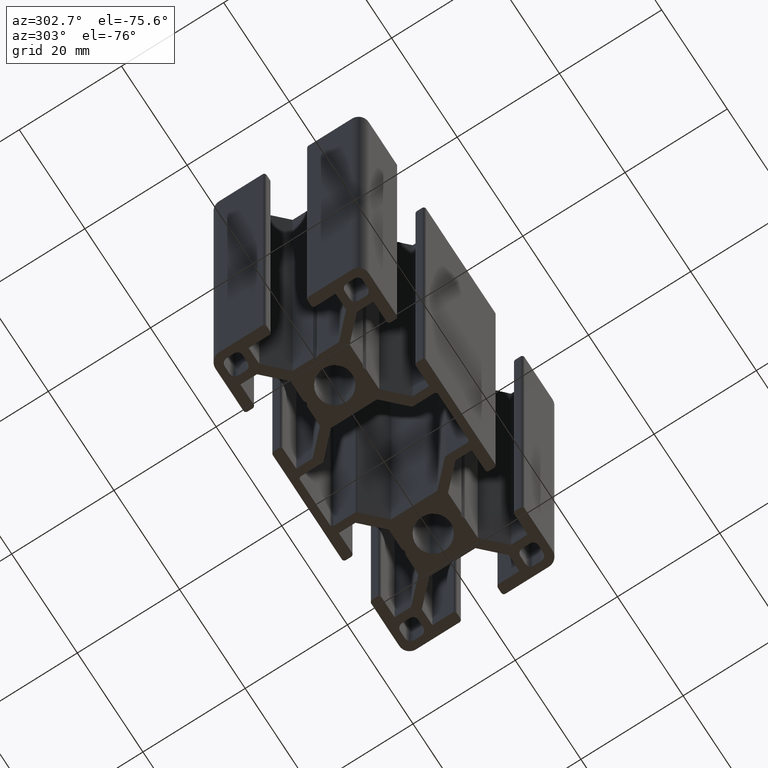
[diagram: clean part render]
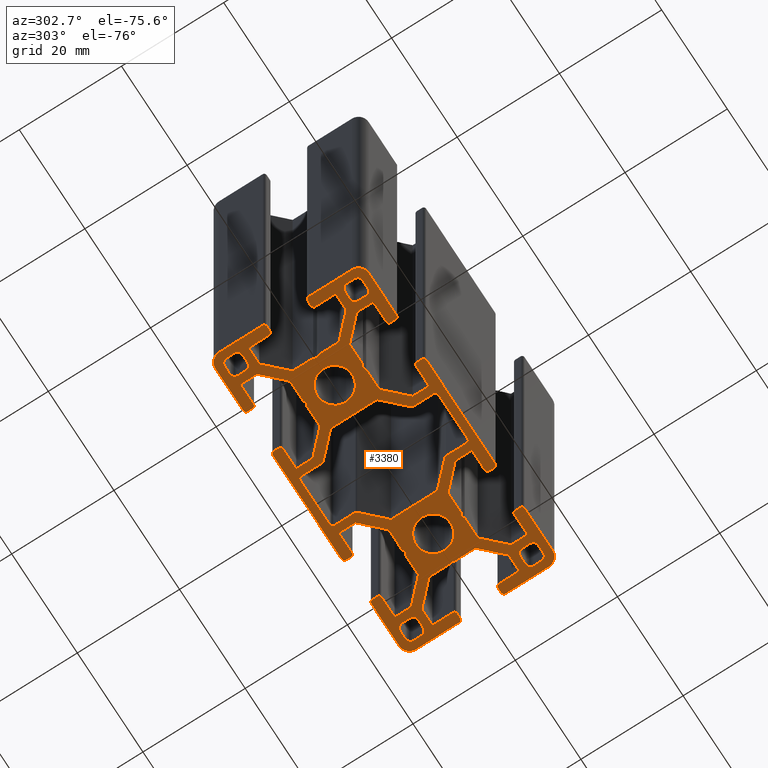
[diagram: same view with one face highlighted and labeled with its STEP entity id]
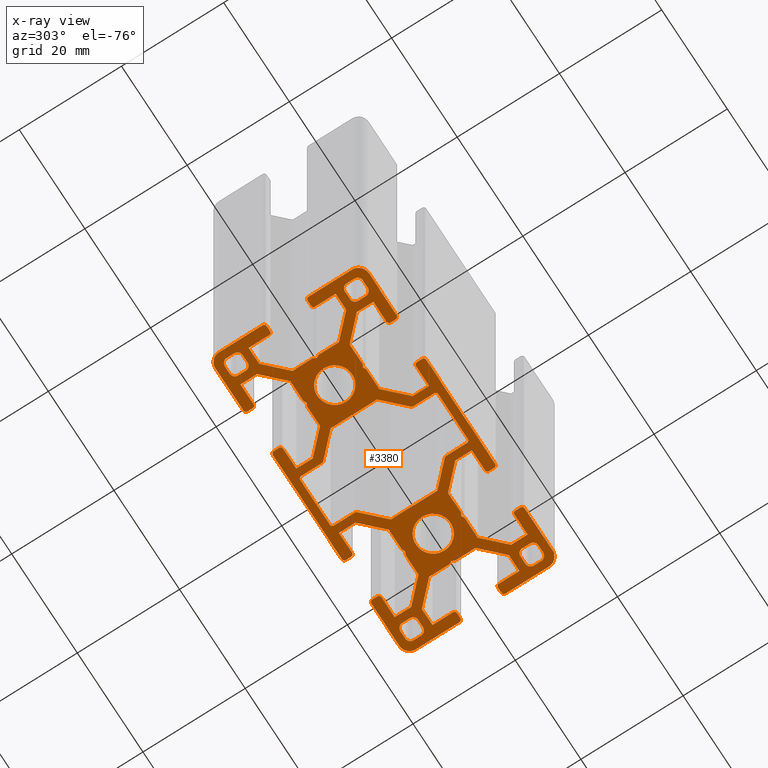
[diagram: x-ray of the same camera — body ghosted, the highlighted face saturated]
A machine part, auxiliary view. The second image highlights one B-rep face of the part: STEP entity #3380.
The next image is the same camera in x-ray: the body ghosted, the highlighted face saturated — about 0% of this face is hidden behind the body in this view.
In plain terms, the highlighted planar face has unit normal (0, 0, 1).
Its self-contained STEP definition (entity closure, byte-faithful):
#24=FACE_BOUND('',#534,.T.);
#25=FACE_BOUND('',#535,.T.);
#26=FACE_BOUND('',#536,.T.);
#27=FACE_BOUND('',#537,.T.);
#28=FACE_BOUND('',#538,.T.);
#29=FACE_BOUND('',#539,.T.);
#30=FACE_BOUND('',#540,.T.);
#32=CIRCLE('',#3387,0.500000000000002);
#34=CIRCLE('',#3391,0.499999999999993);
#36=CIRCLE('',#3395,0.500000000000007);
#38=CIRCLE('',#3399,0.500000000000012);
#40=CIRCLE('',#3405,0.499999999999999);
#42=CIRCLE('',#3409,0.5);
#44=CIRCLE('',#3413,0.5);
#46=CIRCLE('',#3417,0.500000000000048);
#48=CIRCLE('',#3424,0.49999989102557);
#50=CIRCLE('',#3428,0.499999891025563);
#52=CIRCLE('',#3431,0.499999891025567);
#54=CIRCLE('',#3435,0.499999891025553);
#56=CIRCLE('',#3452,0.499999891025563);
#58=CIRCLE('',#3456,0.499999891025553);
#60=CIRCLE('',#3459,0.49999989102556);
#62=CIRCLE('',#3463,0.499999891025551);
#64=CIRCLE('',#3472,0.499999891025567);
#66=CIRCLE('',#3476,0.499999891025567);
#68=CIRCLE('',#3479,0.499999891025567);
#70=CIRCLE('',#3483,0.49999989102556);
#72=CIRCLE('',#3500,0.499999891025563);
#74=CIRCLE('',#3504,0.499999891025553);
#76=CIRCLE('',#3507,0.49999989102557);
#78=CIRCLE('',#3511,0.499999891025558);
#80=CIRCLE('',#3520,0.499999891025571);
#82=CIRCLE('',#3524,0.499999891025549);
#84=CIRCLE('',#3527,0.499999891025563);
#86=CIRCLE('',#3531,0.499999891025542);
#88=CIRCLE('',#3548,0.499999891025567);
#90=CIRCLE('',#3552,0.499999891025567);
#92=CIRCLE('',#3555,0.499999891025563);
#94=CIRCLE('',#3559,0.499999891025567);
#96=CIRCLE('',#3565,0.999999782051127);
#98=CIRCLE('',#3569,0.999999782051113);
#100=CIRCLE('',#3573,0.999999782051134);
#102=CIRCLE('',#3577,0.999999782051116);
#104=CIRCLE('',#3581,0.999999782051109);
#106=CIRCLE('',#3585,0.99999978205112);
#108=CIRCLE('',#3589,0.999999782051088);
#110=CIRCLE('',#3593,0.999999782051141);
#112=CIRCLE('',#3597,0.999999782051109);
#114=CIRCLE('',#3601,0.999999782051113);
#116=CIRCLE('',#3605,0.999999782051116);
#118=CIRCLE('',#3609,0.999999782051134);
#120=CIRCLE('',#3614,0.999999782051106);
#122=CIRCLE('',#3618,0.999999782051113);
#124=CIRCLE('',#3622,0.999999782051091);
#126=CIRCLE('',#3626,0.999999782051127);
#128=CIRCLE('',#3629,3.3999992452);
#130=CIRCLE('',#3632,3.3999992452);
#135=CIRCLE('',#3646,1.99999999999999);
#136=CIRCLE('',#3648,2.00000000000001);
#137=CIRCLE('',#3651,2.00000000000001);
#138=CIRCLE('',#3654,2.00000000000001);
#358=FACE_OUTER_BOUND('',#533,.T.);
#533=EDGE_LOOP('',(#2939,#2940,#2941,#2942,#2943,#2944,#2945,#2946,#2947,
#2948,#2949,#2950,#2951,#2952,#2953,#2954,#2955,#2956,#2957,#2958,#2959,
#2960,#2961,#2962,#2963,#2964,#2965,#2966,#2967,#2968,#2969,#2970,#2971,
#2972,#2973,#2974,#2975,#2976,#2977,#2978,#2979,#2980,#2981,#2982,#2983,
#2984,#2985,#2986,#2987,#2988,#2989,#2990,#2991,#2992,#2993,#2994,#2995,
#2996,#2997,#2998,#2999,#3000,#3001,#3002,#3003,#3004,#3005,#3006,#3007,
#3008,#3009,#3010,#3011,#3012,#3013,#3014,#3015,#3016,#3017,#3018,#3019,
#3020,#3021,#3022,#3023,#3024,#3025,#3026,#3027,#3028,#3029,#3030,#3031,
#3032,#3033,#3034,#3035,#3036,#3037,#3038,#3039,#3040,#3041,#3042,#3043,
#3044,#3045,#3046,#3047,#3048));
#534=EDGE_LOOP('',(#3049,#3050,#3051,#3052,#3053,#3054,#3055,#3056,#3057,
#3058,#3059,#3060,#3061,#3062,#3063,#3064,#3065,#3066,#3067,#3068));
#535=EDGE_LOOP('',(#3069,#3070,#3071,#3072,#3073,#3074,#3075,#3076));
#536=EDGE_LOOP('',(#3077,#3078,#3079,#3080,#3081,#3082,#3083,#3084));
#537=EDGE_LOOP('',(#3085,#3086,#3087,#3088,#3089,#3090,#3091,#3092));
#538=EDGE_LOOP('',(#3093,#3094,#3095,#3096,#3097,#3098,#3099,#3100));
#539=EDGE_LOOP('',(#3101));
#540=EDGE_LOOP('',(#3102));
#543=LINE('',#4597,#925);
#546=LINE('',#4603,#928);
#550=LINE('',#4615,#932);
#554=LINE('',#4627,#936);
#558=LINE('',#4639,#940);
#562=LINE('',#4651,#944);
#565=LINE('',#4657,#947);
#568=LINE('',#4663,#950);
#572=LINE('',#4675,#954);
#576=LINE('',#4687,#958);
#580=LINE('',#4699,#962);
#584=LINE('',#4709,#966);
#587=LINE('',#4717,#969);
#590=LINE('',#4723,#972);
#593=LINE('',#4729,#975);
#597=LINE('',#4741,#979);
#603=LINE('',#4762,#985);
#607=LINE('',#4774,#989);
#610=LINE('',#4780,#992);
#613=LINE('',#4786,#995);
#616=LINE('',#4792,#998);
#619=LINE('',#4798,#1001);
#622=LINE('',#4804,#1004);
#625=LINE('',#4808,#1007);
#628=LINE('',#4816,#1010);
#632=LINE('',#4823,#1014);
#635=LINE('',#4829,#1017);
#638=LINE('',#4835,#1020);
#641=LINE('',#4841,#1023);
#644=LINE('',#4847,#1026);
#647=LINE('',#4853,#1029);
#651=LINE('',#4865,#1033);
#657=LINE('',#4886,#1039);
#661=LINE('',#4898,#1043);
#664=LINE('',#4904,#1046);
#666=LINE('',#4907,#1048);
#669=LINE('',#4915,#1051);
#672=LINE('',#4921,#1054);
#675=LINE('',#4927,#1057);
#679=LINE('',#4939,#1061);
#685=LINE('',#4960,#1067);
#689=LINE('',#4972,#1071);
#692=LINE('',#4978,#1074);
#695=LINE('',#4984,#1077);
#698=LINE('',#4990,#1080);
#701=LINE('',#4996,#1083);
#704=LINE('',#5002,#1086);
#707=LINE('',#5006,#1089);
#710=LINE('',#5014,#1092);
#714=LINE('',#5021,#1096);
#717=LINE('',#5027,#1099);
#720=LINE('',#5033,#1102);
#723=LINE('',#5039,#1105);
#726=LINE('',#5045,#1108);
#729=LINE('',#5051,#1111);
#733=LINE('',#5063,#1115);
#739=LINE('',#5084,#1121);
#743=LINE('',#5096,#1125);
#746=LINE('',#5102,#1128);
#748=LINE('',#5105,#1130);
#751=LINE('',#5113,#1133);
#754=LINE('',#5119,#1136);
#757=LINE('',#5125,#1139);
#761=LINE('',#5137,#1143);
#767=LINE('',#5158,#1149);
#771=LINE('',#5170,#1153);
#774=LINE('',#5176,#1156);
#777=LINE('',#5182,#1159);
#780=LINE('',#5188,#1162);
#783=LINE('',#5194,#1165);
#786=LINE('',#5200,#1168);
#789=LINE('',#5204,#1171);
#792=LINE('',#5212,#1174);
#796=LINE('',#5219,#1178);
#799=LINE('',#5225,#1181);
#802=LINE('',#5231,#1184);
#805=LINE('',#5237,#1187);
#808=LINE('',#5243,#1190);
#811=LINE('',#5249,#1193);
#815=LINE('',#5261,#1197);
#821=LINE('',#5282,#1203);
#825=LINE('',#5294,#1207);
#828=LINE('',#5300,#1210);
#830=LINE('',#5303,#1212);
#834=LINE('',#5317,#1216);
#838=LINE('',#5329,#1220);
#842=LINE('',#5341,#1224);
#846=LINE('',#5351,#1228);
#851=LINE('',#5366,#1233);
#855=LINE('',#5378,#1237);
#859=LINE('',#5390,#1241);
#862=LINE('',#5399,#1244);
#866=LINE('',#5413,#1248);
#870=LINE('',#5425,#1252);
#874=LINE('',#5437,#1256);
#878=LINE('',#5447,#1260);
#881=LINE('',#5455,#1263);
#886=LINE('',#5468,#1268);
#890=LINE('',#5480,#1272);
#894=LINE('',#5492,#1276);
#895=LINE('',#5508,#1277);
#898=LINE('',#5514,#1280);
#901=LINE('',#5519,#1283);
#905=LINE('',#5526,#1287);
#906=LINE('',#5529,#1288);
#911=LINE('',#5538,#1293);
#912=LINE('',#5541,#1294);
#920=LINE('',#5564,#1302);
#921=LINE('',#5568,#1303);
#922=LINE('',#5572,#1304);
#925=VECTOR('',#3663,9.05441357991973);
#928=VECTOR('',#3668,5.73258886216852);
#932=VECTOR('',#3680,4.06568511925241);
#936=VECTOR('',#3692,9.00000618999961);
#940=VECTOR('',#3704,4.06568686925198);
#944=VECTOR('',#3716,5.73258638729536);
#947=VECTOR('',#3721,9.05441357991976);
#950=VECTOR('',#3726,5.7325863872943);
#954=VECTOR('',#3738,4.06568687925335);
#958=VECTOR('',#3750,9.0000061899996);
#962=VECTOR('',#3762,4.06568512925378);
#966=VECTOR('',#3774,5.73258886216743);
#969=VECTOR('',#3779,5.61837536245042);
#972=VECTOR('',#3784,3.22720707355987);
#975=VECTOR('',#3789,3.99999910997443);
#979=VECTOR('',#3801,0.99999979002555);
#985=VECTOR('',#3821,0.99999979002555);
#989=VECTOR('',#3833,3.99999911200002);
#992=VECTOR('',#3838,3.22720706355981);
#995=VECTOR('',#3843,5.61837537659261);
#998=VECTOR('',#3848,4.00759166031447);
#1001=VECTOR('',#3853,0.599999864833552);
#1004=VECTOR('',#3858,0.599999873493792);
#1007=VECTOR('',#3863,4.00759166031446);
#1010=VECTOR('',#3868,4.00759166031444);
#1014=VECTOR('',#3874,0.599999873493816);
#1017=VECTOR('',#3879,0.59999986483358);
#1020=VECTOR('',#3884,4.00759166031445);
#1023=VECTOR('',#3889,5.6183753765926);
#1026=VECTOR('',#3894,3.22720707355982);
#1029=VECTOR('',#3899,3.99999910997446);
#1033=VECTOR('',#3911,0.999999775974434);
#1039=VECTOR('',#3931,0.999999775974461);
#1043=VECTOR('',#3943,3.999999112);
#1046=VECTOR('',#3948,3.22720707355984);
#1048=VECTOR('',#3952,5.61837536952152);
#1051=VECTOR('',#3957,5.61837536952151);
#1054=VECTOR('',#3962,3.2272070835599);
#1057=VECTOR('',#3967,3.99999911402558);
#1061=VECTOR('',#3979,0.999999775974461);
#1067=VECTOR('',#3999,0.999999780025576);
#1071=VECTOR('',#4011,3.999999112);
#1074=VECTOR('',#4016,3.22720708355992);
#1077=VECTOR('',#4021,5.61837536245044);
#1080=VECTOR('',#4026,4.00759166031444);
#1083=VECTOR('',#4031,0.599999873493783);
#1086=VECTOR('',#4036,0.599999864833548);
#1089=VECTOR('',#4041,4.00759166031445);
#1092=VECTOR('',#4046,4.00759166031444);
#1096=VECTOR('',#4052,0.599999873493821);
#1099=VECTOR('',#4057,0.599999864833577);
#1102=VECTOR('',#4062,4.00759166031444);
#1105=VECTOR('',#4067,5.6183753765926);
#1108=VECTOR('',#4072,3.22720707355983);
#1111=VECTOR('',#4077,3.99999910997446);
#1115=VECTOR('',#4089,0.999999775974434);
#1121=VECTOR('',#4109,0.999999775974461);
#1125=VECTOR('',#4121,3.99999911199999);
#1128=VECTOR('',#4126,3.22720707355984);
#1130=VECTOR('',#4130,5.61837536952152);
#1133=VECTOR('',#4135,5.61837538348106);
#1136=VECTOR('',#4140,3.22720706355985);
#1139=VECTOR('',#4145,3.9999991140256);
#1143=VECTOR('',#4157,0.999999780025571);
#1149=VECTOR('',#4177,0.999999775974447);
#1153=VECTOR('',#4189,3.99999910997443);
#1156=VECTOR('',#4194,3.22720707355986);
#1159=VECTOR('',#4199,5.61837536952147);
#1162=VECTOR('',#4204,4.00759166031449);
#1165=VECTOR('',#4209,0.599999873493783);
#1168=VECTOR('',#4214,0.599999864833544);
#1171=VECTOR('',#4219,4.00759166057267);
#1174=VECTOR('',#4224,4.00759166031444);
#1178=VECTOR('',#4230,0.599999864833544);
#1181=VECTOR('',#4235,0.599999873493786);
#1184=VECTOR('',#4240,4.00759166031444);
#1187=VECTOR('',#4245,5.61837536245044);
#1190=VECTOR('',#4250,3.22720708355992);
#1193=VECTOR('',#4255,3.999999112);
#1197=VECTOR('',#4267,0.999999780025576);
#1203=VECTOR('',#4287,0.999999775974461);
#1207=VECTOR('',#4299,3.99999911402558);
#1210=VECTOR('',#4304,3.2272070835599);
#1212=VECTOR('',#4308,5.61837536952152);
#1216=VECTOR('',#4320,1.49999966294891);
#1220=VECTOR('',#4332,1.49999966294888);
#1224=VECTOR('',#4344,1.49999966294891);
#1228=VECTOR('',#4356,1.49999966294889);
#1233=VECTOR('',#4369,1.49999966294889);
#1237=VECTOR('',#4381,1.49999966294891);
#1241=VECTOR('',#4393,1.49999966294888);
#1244=VECTOR('',#4404,1.49999966294891);
#1248=VECTOR('',#4416,1.49999966700003);
#1252=VECTOR('',#4428,1.4999996629489);
#1256=VECTOR('',#4440,1.49999965889779);
#1260=VECTOR('',#4452,1.49999967105114);
#1263=VECTOR('',#4457,1.49999967105114);
#1268=VECTOR('',#4470,1.49999967700004);
#1272=VECTOR('',#4482,1.4999996629489);
#1276=VECTOR('',#4494,1.49999965889783);
#1277=VECTOR('',#4515,8.49999766697447);
#1280=VECTOR('',#4520,8.49999766697446);
#1283=VECTOR('',#4525,21.0000019939489);
#1287=VECTOR('',#4531,8.50000432697445);
#1288=VECTOR('',#4534,8.50000432697441);
#1293=VECTOR('',#4541,8.49999766697445);
#1294=VECTOR('',#4544,8.50000432697448);
#1302=VECTOR('',#4572,8.50000432697444);
#1303=VECTOR('',#4579,21.0000019939488);
#1304=VECTOR('',#4586,8.49999766697446);
#1307=VERTEX_POINT('',#4594);
#1308=VERTEX_POINT('',#4596);
#1310=VERTEX_POINT('',#4602);
#1312=VERTEX_POINT('',#4608);
#1314=VERTEX_POINT('',#4614);
#1316=VERTEX_POINT('',#4620);
#1318=VERTEX_POINT('',#4626);
#1320=VERTEX_POINT('',#4632);
#1322=VERTEX_POINT('',#4638);
#1324=VERTEX_POINT('',#4644);
#1326=VERTEX_POINT('',#4650);
#1328=VERTEX_POINT('',#4656);
#1330=VERTEX_POINT('',#4662);
#1332=VERTEX_POINT('',#4668);
#1334=VERTEX_POINT('',#4674);
#1336=VERTEX_POINT('',#4680);
#1338=VERTEX_POINT('',#4686);
#1340=VERTEX_POINT('',#4692);
#1342=VERTEX_POINT('',#4698);
#1344=VERTEX_POINT('',#4704);
#1347=VERTEX_POINT('',#4714);
#1348=VERTEX_POINT('',#4716);
#1350=VERTEX_POINT('',#4722);
#1352=VERTEX_POINT('',#4728);
#1354=VERTEX_POINT('',#4734);
#1356=VERTEX_POINT('',#4740);
#1358=VERTEX_POINT('',#4746);
#1361=VERTEX_POINT('',#4753);
#1362=VERTEX_POINT('',#4755);
#1364=VERTEX_POINT('',#4761);
#1366=VERTEX_POINT('',#4767);
#1368=VERTEX_POINT('',#4773);
#1370=VERTEX_POINT('',#4779);
#1372=VERTEX_POINT('',#4785);
#1374=VERTEX_POINT('',#4791);
#1376=VERTEX_POINT('',#4797);
#1378=VERTEX_POINT('',#4803);
#1381=VERTEX_POINT('',#4813);
#1382=VERTEX_POINT('',#4815);
#1384=VERTEX_POINT('',#4821);
#1386=VERTEX_POINT('',#4827);
#1388=VERTEX_POINT('',#4833);
#1390=VERTEX_POINT('',#4839);
#1392=VERTEX_POINT('',#4845);
#1394=VERTEX_POINT('',#4851);
#1396=VERTEX_POINT('',#4857);
#1398=VERTEX_POINT('',#4863);
#1400=VERTEX_POINT('',#4869);
#1403=VERTEX_POINT('',#4876);
#1404=VERTEX_POINT('',#4878);
#1406=VERTEX_POINT('',#4884);
#1408=VERTEX_POINT('',#4890);
#1410=VERTEX_POINT('',#4896);
#1412=VERTEX_POINT('',#4902);
#1415=VERTEX_POINT('',#4912);
#1416=VERTEX_POINT('',#4914);
#1418=VERTEX_POINT('',#4920);
#1420=VERTEX_POINT('',#4926);
#1422=VERTEX_POINT('',#4932);
#1424=VERTEX_POINT('',#4938);
#1426=VERTEX_POINT('',#4944);
#1429=VERTEX_POINT('',#4951);
#1430=VERTEX_POINT('',#4953);
#1432=VERTEX_POINT('',#4959);
#1434=VERTEX_POINT('',#4965);
#1436=VERTEX_POINT('',#4971);
#1438=VERTEX_POINT('',#4977);
#1440=VERTEX_POINT('',#4983);
#1442=VERTEX_POINT('',#4989);
#1444=VERTEX_POINT('',#4995);
#1446=VERTEX_POINT('',#5001);
#1449=VERTEX_POINT('',#5011);
#1450=VERTEX_POINT('',#5013);
#1452=VERTEX_POINT('',#5019);
#1454=VERTEX_POINT('',#5025);
#1456=VERTEX_POINT('',#5031);
#1458=VERTEX_POINT('',#5037);
#1460=VERTEX_POINT('',#5043);
#1462=VERTEX_POINT('',#5049);
#1464=VERTEX_POINT('',#5055);
#1466=VERTEX_POINT('',#5061);
#1468=VERTEX_POINT('',#5067);
#1471=VERTEX_POINT('',#5074);
#1472=VERTEX_POINT('',#5076);
#1474=VERTEX_POINT('',#5082);
#1476=VERTEX_POINT('',#5088);
#1478=VERTEX_POINT('',#5094);
#1480=VERTEX_POINT('',#5100);
#1483=VERTEX_POINT('',#5110);
#1484=VERTEX_POINT('',#5112);
#1486=VERTEX_POINT('',#5118);
#1488=VERTEX_POINT('',#5124);
#1490=VERTEX_POINT('',#5130);
#1492=VERTEX_POINT('',#5136);
#1494=VERTEX_POINT('',#5142);
#1497=VERTEX_POINT('',#5149);
#1498=VERTEX_POINT('',#5151);
#1500=VERTEX_POINT('',#5157);
#1502=VERTEX_POINT('',#5163);
#1504=VERTEX_POINT('',#5169);
#1506=VERTEX_POINT('',#5175);
#1508=VERTEX_POINT('',#5181);
#1510=VERTEX_POINT('',#5187);
#1512=VERTEX_POINT('',#5193);
#1514=VERTEX_POINT('',#5199);
#1517=VERTEX_POINT('',#5209);
#1518=VERTEX_POINT('',#5211);
#1520=VERTEX_POINT('',#5217);
#1522=VERTEX_POINT('',#5223);
#1524=VERTEX_POINT('',#5229);
#1526=VERTEX_POINT('',#5235);
#1528=VERTEX_POINT('',#5241);
#1530=VERTEX_POINT('',#5247);
#1532=VERTEX_POINT('',#5253);
#1534=VERTEX_POINT('',#5259);
#1536=VERTEX_POINT('',#5265);
#1539=VERTEX_POINT('',#5272);
#1540=VERTEX_POINT('',#5274);
#1542=VERTEX_POINT('',#5280);
#1544=VERTEX_POINT('',#5286);
#1546=VERTEX_POINT('',#5292);
#1548=VERTEX_POINT('',#5298);
#1551=VERTEX_POINT('',#5308);
#1552=VERTEX_POINT('',#5310);
#1554=VERTEX_POINT('',#5316);
#1556=VERTEX_POINT('',#5322);
#1558=VERTEX_POINT('',#5328);
#1560=VERTEX_POINT('',#5334);
#1562=VERTEX_POINT('',#5340);
#1564=VERTEX_POINT('',#5346);
#1567=VERTEX_POINT('',#5356);
#1568=VERTEX_POINT('',#5358);
#1570=VERTEX_POINT('',#5364);
#1572=VERTEX_POINT('',#5370);
#1574=VERTEX_POINT('',#5376);
#1576=VERTEX_POINT('',#5382);
#1578=VERTEX_POINT('',#5388);
#1580=VERTEX_POINT('',#5394);
#1583=VERTEX_POINT('',#5404);
#1584=VERTEX_POINT('',#5406);
#1586=VERTEX_POINT('',#5412);
#1588=VERTEX_POINT('',#5418);
#1590=VERTEX_POINT('',#5424);
#1592=VERTEX_POINT('',#5430);
#1594=VERTEX_POINT('',#5436);
#1596=VERTEX_POINT('',#5442);
#1599=VERTEX_POINT('',#5452);
#1600=VERTEX_POINT('',#5454);
#1602=VERTEX_POINT('',#5460);
#1604=VERTEX_POINT('',#5466);
#1606=VERTEX_POINT('',#5472);
#1608=VERTEX_POINT('',#5478);
#1610=VERTEX_POINT('',#5484);
#1612=VERTEX_POINT('',#5490);
#1614=VERTEX_POINT('',#5499);
#1616=VERTEX_POINT('',#5504);
#1617=VERTEX_POINT('',#5507);
#1619=VERTEX_POINT('',#5513);
#1622=VERTEX_POINT('',#5524);
#1623=VERTEX_POINT('',#5528);
#1626=VERTEX_POINT('',#5536);
#1627=VERTEX_POINT('',#5540);
#1631=VERTEX_POINT('',#5556);
#1632=VERTEX_POINT('',#5562);
#1635=EDGE_CURVE('',#1308,#1307,#543,.T.);
#1638=EDGE_CURVE('',#1310,#1308,#546,.T.);
#1641=EDGE_CURVE('',#1312,#1310,#32,.T.);
#1644=EDGE_CURVE('',#1314,#1312,#550,.T.);
#1647=EDGE_CURVE('',#1316,#1314,#34,.T.);
#1650=EDGE_CURVE('',#1318,#1316,#554,.T.);
#1653=EDGE_CURVE('',#1320,#1318,#36,.T.);
#1656=EDGE_CURVE('',#1322,#1320,#558,.T.);
#1659=EDGE_CURVE('',#1324,#1322,#38,.T.);
#1662=EDGE_CURVE('',#1326,#1324,#562,.T.);
#1665=EDGE_CURVE('',#1328,#1326,#565,.T.);
#1668=EDGE_CURVE('',#1330,#1328,#568,.T.);
#1671=EDGE_CURVE('',#1332,#1330,#40,.T.);
#1674=EDGE_CURVE('',#1334,#1332,#572,.T.);
#1677=EDGE_CURVE('',#1336,#1334,#42,.T.);
#1680=EDGE_CURVE('',#1338,#1336,#576,.T.);
#1683=EDGE_CURVE('',#1340,#1338,#44,.T.);
#1686=EDGE_CURVE('',#1342,#1340,#580,.T.);
#1689=EDGE_CURVE('',#1344,#1342,#46,.T.);
#1692=EDGE_CURVE('',#1307,#1344,#584,.T.);
#1695=EDGE_CURVE('',#1348,#1347,#587,.T.);
#1698=EDGE_CURVE('',#1350,#1348,#590,.T.);
#1701=EDGE_CURVE('',#1352,#1350,#593,.T.);
#1704=EDGE_CURVE('',#1354,#1352,#48,.T.);
#1707=EDGE_CURVE('',#1356,#1354,#597,.T.);
#1710=EDGE_CURVE('',#1358,#1356,#50,.T.);
#1714=EDGE_CURVE('',#1362,#1361,#52,.T.);
#1717=EDGE_CURVE('',#1364,#1362,#603,.T.);
#1720=EDGE_CURVE('',#1366,#1364,#54,.T.);
#1723=EDGE_CURVE('',#1368,#1366,#607,.T.);
#1726=EDGE_CURVE('',#1370,#1368,#610,.T.);
#1729=EDGE_CURVE('',#1372,#1370,#613,.T.);
#1732=EDGE_CURVE('',#1374,#1372,#616,.T.);
#1735=EDGE_CURVE('',#1376,#1374,#619,.T.);
#1738=EDGE_CURVE('',#1378,#1376,#622,.T.);
#1741=EDGE_CURVE('',#1347,#1378,#625,.T.);
#1744=EDGE_CURVE('',#1382,#1381,#628,.T.);
#1748=EDGE_CURVE('',#1381,#1384,#632,.T.);
#1751=EDGE_CURVE('',#1384,#1386,#635,.T.);
#1754=EDGE_CURVE('',#1386,#1388,#638,.T.);
#1757=EDGE_CURVE('',#1388,#1390,#641,.T.);
#1760=EDGE_CURVE('',#1390,#1392,#644,.T.);
#1763=EDGE_CURVE('',#1392,#1394,#647,.T.);
#1766=EDGE_CURVE('',#1394,#1396,#56,.T.);
#1769=EDGE_CURVE('',#1396,#1398,#651,.T.);
#1772=EDGE_CURVE('',#1398,#1400,#58,.T.);
#1775=EDGE_CURVE('',#1404,#1403,#60,.T.);
#1779=EDGE_CURVE('',#1403,#1406,#657,.T.);
#1782=EDGE_CURVE('',#1406,#1408,#62,.T.);
#1785=EDGE_CURVE('',#1408,#1410,#661,.T.);
#1788=EDGE_CURVE('',#1410,#1412,#664,.T.);
#1790=EDGE_CURVE('',#1412,#1382,#666,.T.);
#1793=EDGE_CURVE('',#1416,#1415,#669,.T.);
#1796=EDGE_CURVE('',#1418,#1416,#672,.T.);
#1799=EDGE_CURVE('',#1420,#1418,#675,.T.);
#1802=EDGE_CURVE('',#1422,#1420,#64,.T.);
#1805=EDGE_CURVE('',#1424,#1422,#679,.T.);
#1808=EDGE_CURVE('',#1426,#1424,#66,.T.);
#1812=EDGE_CURVE('',#1430,#1429,#68,.T.);
#1815=EDGE_CURVE('',#1432,#1430,#685,.T.);
#1818=EDGE_CURVE('',#1434,#1432,#70,.T.);
#1821=EDGE_CURVE('',#1436,#1434,#689,.T.);
#1824=EDGE_CURVE('',#1438,#1436,#692,.T.);
#1827=EDGE_CURVE('',#1440,#1438,#695,.T.);
#1830=EDGE_CURVE('',#1442,#1440,#698,.T.);
#1833=EDGE_CURVE('',#1444,#1442,#701,.T.);
#1836=EDGE_CURVE('',#1446,#1444,#704,.T.);
#1839=EDGE_CURVE('',#1415,#1446,#707,.T.);
#1842=EDGE_CURVE('',#1450,#1449,#710,.T.);
#1846=EDGE_CURVE('',#1449,#1452,#714,.T.);
#1849=EDGE_CURVE('',#1452,#1454,#717,.T.);
#1852=EDGE_CURVE('',#1454,#1456,#720,.T.);
#1855=EDGE_CURVE('',#1456,#1458,#723,.T.);
#1858=EDGE_CURVE('',#1458,#1460,#726,.T.);
#1861=EDGE_CURVE('',#1460,#1462,#729,.T.);
#1864=EDGE_CURVE('',#1462,#1464,#72,.T.);
#1867=EDGE_CURVE('',#1464,#1466,#733,.T.);
#1870=EDGE_CURVE('',#1466,#1468,#74,.T.);
#1873=EDGE_CURVE('',#1472,#1471,#76,.T.);
#1877=EDGE_CURVE('',#1471,#1474,#739,.T.);
#1880=EDGE_CURVE('',#1474,#1476,#78,.T.);
#1883=EDGE_CURVE('',#1476,#1478,#743,.T.);
#1886=EDGE_CURVE('',#1478,#1480,#746,.T.);
#1888=EDGE_CURVE('',#1480,#1450,#748,.T.);
#1891=EDGE_CURVE('',#1484,#1483,#751,.T.);
#1894=EDGE_CURVE('',#1486,#1484,#754,.T.);
#1897=EDGE_CURVE('',#1488,#1486,#757,.T.);
#1900=EDGE_CURVE('',#1490,#1488,#80,.T.);
#1903=EDGE_CURVE('',#1492,#1490,#761,.T.);
#1906=EDGE_CURVE('',#1494,#1492,#82,.T.);
#1910=EDGE_CURVE('',#1498,#1497,#84,.T.);
#1913=EDGE_CURVE('',#1500,#1498,#767,.T.);
#1916=EDGE_CURVE('',#1502,#1500,#86,.T.);
#1919=EDGE_CURVE('',#1504,#1502,#771,.T.);
#1922=EDGE_CURVE('',#1506,#1504,#774,.T.);
#1925=EDGE_CURVE('',#1508,#1506,#777,.T.);
#1928=EDGE_CURVE('',#1510,#1508,#780,.T.);
#1931=EDGE_CURVE('',#1512,#1510,#783,.T.);
#1934=EDGE_CURVE('',#1514,#1512,#786,.T.);
#1937=EDGE_CURVE('',#1483,#1514,#789,.T.);
#1940=EDGE_CURVE('',#1518,#1517,#792,.T.);
#1944=EDGE_CURVE('',#1517,#1520,#796,.T.);
#1947=EDGE_CURVE('',#1520,#1522,#799,.T.);
#1950=EDGE_CURVE('',#1522,#1524,#802,.T.);
#1953=EDGE_CURVE('',#1524,#1526,#805,.T.);
#1956=EDGE_CURVE('',#1526,#1528,#808,.T.);
#1959=EDGE_CURVE('',#1528,#1530,#811,.T.);
#1962=EDGE_CURVE('',#1530,#1532,#88,.T.);
#1965=EDGE_CURVE('',#1532,#1534,#815,.T.);
#1968=EDGE_CURVE('',#1534,#1536,#90,.T.);
#1971=EDGE_CURVE('',#1540,#1539,#92,.T.);
#1975=EDGE_CURVE('',#1539,#1542,#821,.T.);
#1978=EDGE_CURVE('',#1542,#1544,#94,.T.);
#1981=EDGE_CURVE('',#1544,#1546,#825,.T.);
#1984=EDGE_CURVE('',#1546,#1548,#828,.T.);
#1986=EDGE_CURVE('',#1548,#1518,#830,.T.);
#1989=EDGE_CURVE('',#1552,#1551,#96,.T.);
#1992=EDGE_CURVE('',#1554,#1552,#834,.T.);
#1995=EDGE_CURVE('',#1556,#1554,#98,.T.);
#1998=EDGE_CURVE('',#1558,#1556,#838,.T.);
#2001=EDGE_CURVE('',#1560,#1558,#100,.T.);
#2004=EDGE_CURVE('',#1562,#1560,#842,.T.);
#2007=EDGE_CURVE('',#1564,#1562,#102,.T.);
#2010=EDGE_CURVE('',#1551,#1564,#846,.T.);
#2013=EDGE_CURVE('',#1568,#1567,#104,.T.);
#2017=EDGE_CURVE('',#1567,#1570,#851,.T.);
#2020=EDGE_CURVE('',#1570,#1572,#106,.T.);
#2023=EDGE_CURVE('',#1572,#1574,#855,.T.);
#2026=EDGE_CURVE('',#1574,#1576,#108,.T.);
#2029=EDGE_CURVE('',#1576,#1578,#859,.T.);
#2032=EDGE_CURVE('',#1578,#1580,#110,.T.);
#2034=EDGE_CURVE('',#1580,#1568,#862,.T.);
#2037=EDGE_CURVE('',#1584,#1583,#112,.T.);
#2040=EDGE_CURVE('',#1586,#1584,#866,.T.);
#2043=EDGE_CURVE('',#1588,#1586,#114,.T.);
#2046=EDGE_CURVE('',#1590,#1588,#870,.T.);
#2049=EDGE_CURVE('',#1592,#1590,#116,.T.);
#2052=EDGE_CURVE('',#1594,#1592,#874,.T.);
#2055=EDGE_CURVE('',#1596,#1594,#118,.T.);
#2058=EDGE_CURVE('',#1583,#1596,#878,.T.);
#2061=EDGE_CURVE('',#1600,#1599,#881,.T.);
#2065=EDGE_CURVE('',#1599,#1602,#120,.T.);
#2068=EDGE_CURVE('',#1602,#1604,#886,.T.);
#2071=EDGE_CURVE('',#1604,#1606,#122,.T.);
#2074=EDGE_CURVE('',#1606,#1608,#890,.T.);
#2077=EDGE_CURVE('',#1608,#1610,#124,.T.);
#2080=EDGE_CURVE('',#1610,#1612,#894,.T.);
#2082=EDGE_CURVE('',#1612,#1600,#126,.T.);
#2084=EDGE_CURVE('',#1614,#1614,#128,.T.);
#2086=EDGE_CURVE('',#1616,#1616,#130,.T.);
#2087=EDGE_CURVE('',#1617,#1358,#895,.T.);
#2090=EDGE_CURVE('',#1619,#1472,#898,.T.);
#2093=EDGE_CURVE('',#1468,#1404,#901,.T.);
#2097=EDGE_CURVE('',#1400,#1622,#905,.T.);
#2098=EDGE_CURVE('',#1623,#1494,#906,.T.);
#2103=EDGE_CURVE('',#1536,#1626,#911,.T.);
#2104=EDGE_CURVE('',#1627,#1426,#912,.T.);
#2114=EDGE_CURVE('',#1631,#1619,#135,.T.);
#2116=EDGE_CURVE('',#1622,#1617,#136,.T.);
#2118=EDGE_CURVE('',#1361,#1632,#920,.T.);
#2119=EDGE_CURVE('',#1632,#1627,#137,.T.);
#2120=EDGE_CURVE('',#1429,#1540,#921,.T.);
#2121=EDGE_CURVE('',#1626,#1623,#138,.T.);
#2122=EDGE_CURVE('',#1497,#1631,#922,.T.);
#2939=ORIENTED_EDGE('',*,*,#1714,.T.);
#2940=ORIENTED_EDGE('',*,*,#2118,.T.);
#2941=ORIENTED_EDGE('',*,*,#2119,.T.);
#2942=ORIENTED_EDGE('',*,*,#2104,.T.);
#2943=ORIENTED_EDGE('',*,*,#1808,.T.);
#2944=ORIENTED_EDGE('',*,*,#1805,.T.);
#2945=ORIENTED_EDGE('',*,*,#1802,.T.);
#2946=ORIENTED_EDGE('',*,*,#1799,.T.);
#2947=ORIENTED_EDGE('',*,*,#1796,.T.);
#2948=ORIENTED_EDGE('',*,*,#1793,.T.);
#2949=ORIENTED_EDGE('',*,*,#1839,.T.);
#2950=ORIENTED_EDGE('',*,*,#1836,.T.);
#2951=ORIENTED_EDGE('',*,*,#1833,.T.);
#2952=ORIENTED_EDGE('',*,*,#1830,.T.);
#2953=ORIENTED_EDGE('',*,*,#1827,.T.);
#2954=ORIENTED_EDGE('',*,*,#1824,.T.);
#2955=ORIENTED_EDGE('',*,*,#1821,.T.);
#2956=ORIENTED_EDGE('',*,*,#1818,.T.);
#2957=ORIENTED_EDGE('',*,*,#1815,.T.);
#2958=ORIENTED_EDGE('',*,*,#1812,.T.);
#2959=ORIENTED_EDGE('',*,*,#2120,.T.);
#2960=ORIENTED_EDGE('',*,*,#1971,.T.);
#2961=ORIENTED_EDGE('',*,*,#1975,.T.);
#2962=ORIENTED_EDGE('',*,*,#1978,.T.);
#2963=ORIENTED_EDGE('',*,*,#1981,.T.);
#2964=ORIENTED_EDGE('',*,*,#1984,.T.);
#2965=ORIENTED_EDGE('',*,*,#1986,.T.);
#2966=ORIENTED_EDGE('',*,*,#1940,.T.);
#2967=ORIENTED_EDGE('',*,*,#1944,.T.);
#2968=ORIENTED_EDGE('',*,*,#1947,.T.);
#2969=ORIENTED_EDGE('',*,*,#1950,.T.);
#2970=ORIENTED_EDGE('',*,*,#1953,.T.);
#2971=ORIENTED_EDGE('',*,*,#1956,.T.);
#2972=ORIENTED_EDGE('',*,*,#1959,.T.);
#2973=ORIENTED_EDGE('',*,*,#1962,.T.);
#2974=ORIENTED_EDGE('',*,*,#1965,.T.);
#2975=ORIENTED_EDGE('',*,*,#1968,.T.);
#2976=ORIENTED_EDGE('',*,*,#2103,.T.);
#2977=ORIENTED_EDGE('',*,*,#2121,.T.);
#2978=ORIENTED_EDGE('',*,*,#2098,.T.);
#2979=ORIENTED_EDGE('',*,*,#1906,.T.);
#2980=ORIENTED_EDGE('',*,*,#1903,.T.);
#2981=ORIENTED_EDGE('',*,*,#1900,.T.);
#2982=ORIENTED_EDGE('',*,*,#1897,.T.);
#2983=ORIENTED_EDGE('',*,*,#1894,.T.);
#2984=ORIENTED_EDGE('',*,*,#1891,.T.);
#2985=ORIENTED_EDGE('',*,*,#1937,.T.);
#2986=ORIENTED_EDGE('',*,*,#1934,.T.);
#2987=ORIENTED_EDGE('',*,*,#1931,.T.);
#2988=ORIENTED_EDGE('',*,*,#1928,.T.);
#2989=ORIENTED_EDGE('',*,*,#1925,.T.);
#2990=ORIENTED_EDGE('',*,*,#1922,.T.);
#2991=ORIENTED_EDGE('',*,*,#1919,.T.);
#2992=ORIENTED_EDGE('',*,*,#1916,.T.);
#2993=ORIENTED_EDGE('',*,*,#1913,.T.);
#2994=ORIENTED_EDGE('',*,*,#1910,.T.);
#2995=ORIENTED_EDGE('',*,*,#2122,.T.);
#2996=ORIENTED_EDGE('',*,*,#2114,.T.);
#2997=ORIENTED_EDGE('',*,*,#2090,.T.);
#2998=ORIENTED_EDGE('',*,*,#1873,.T.);
#2999=ORIENTED_EDGE('',*,*,#1877,.T.);
#3000=ORIENTED_EDGE('',*,*,#1880,.T.);
#3001=ORIENTED_EDGE('',*,*,#1883,.T.);
#3002=ORIENTED_EDGE('',*,*,#1886,.T.);
#3003=ORIENTED_EDGE('',*,*,#1888,.T.);
#3004=ORIENTED_EDGE('',*,*,#1842,.T.);
#3005=ORIENTED_EDGE('',*,*,#1846,.T.);
#3006=ORIENTED_EDGE('',*,*,#1849,.T.);
#3007=ORIENTED_EDGE('',*,*,#1852,.T.);
#3008=ORIENTED_EDGE('',*,*,#1855,.T.);
#3009=ORIENTED_EDGE('',*,*,#1858,.T.);
#3010=ORIENTED_EDGE('',*,*,#1861,.T.);
#3011=ORIENTED_EDGE('',*,*,#1864,.T.);
#3012=ORIENTED_EDGE('',*,*,#1867,.T.);
#3013=ORIENTED_EDGE('',*,*,#1870,.T.);
#3014=ORIENTED_EDGE('',*,*,#2093,.T.);
#3015=ORIENTED_EDGE('',*,*,#1775,.T.);
#3016=ORIENTED_EDGE('',*,*,#1779,.T.);
#3017=ORIENTED_EDGE('',*,*,#1782,.T.);
#3018=ORIENTED_EDGE('',*,*,#1785,.T.);
#3019=ORIENTED_EDGE('',*,*,#1788,.T.);
#3020=ORIENTED_EDGE('',*,*,#1790,.T.);
#3021=ORIENTED_EDGE('',*,*,#1744,.T.);
#3022=ORIENTED_EDGE('',*,*,#1748,.T.);
#3023=ORIENTED_EDGE('',*,*,#1751,.T.);
#3024=ORIENTED_EDGE('',*,*,#1754,.T.);
#3025=ORIENTED_EDGE('',*,*,#1757,.T.);
#3026=ORIENTED_EDGE('',*,*,#1760,.T.);
#3027=ORIENTED_EDGE('',*,*,#1763,.T.);
#3028=ORIENTED_EDGE('',*,*,#1766,.T.);
#3029=ORIENTED_EDGE('',*,*,#1769,.T.);
#3030=ORIENTED_EDGE('',*,*,#1772,.T.);
#3031=ORIENTED_EDGE('',*,*,#2097,.T.);
#3032=ORIENTED_EDGE('',*,*,#2116,.T.);
#3033=ORIENTED_EDGE('',*,*,#2087,.T.);
#3034=ORIENTED_EDGE('',*,*,#1710,.T.);
#3035=ORIENTED_EDGE('',*,*,#1707,.T.);
#3036=ORIENTED_EDGE('',*,*,#1704,.T.);
#3037=ORIENTED_EDGE('',*,*,#1701,.T.);
#3038=ORIENTED_EDGE('',*,*,#1698,.T.);
#3039=ORIENTED_EDGE('',*,*,#1695,.T.);
#3040=ORIENTED_EDGE('',*,*,#1741,.T.);
#3041=ORIENTED_EDGE('',*,*,#1738,.T.);
#3042=ORIENTED_EDGE('',*,*,#1735,.T.);
#3043=ORIENTED_EDGE('',*,*,#1732,.T.);
#3044=ORIENTED_EDGE('',*,*,#1729,.T.);
#3045=ORIENTED_EDGE('',*,*,#1726,.T.);
#3046=ORIENTED_EDGE('',*,*,#1723,.T.);
#3047=ORIENTED_EDGE('',*,*,#1720,.T.);
#3048=ORIENTED_EDGE('',*,*,#1717,.T.);
#3049=ORIENTED_EDGE('',*,*,#1635,.T.);
#3050=ORIENTED_EDGE('',*,*,#1692,.T.);
#3051=ORIENTED_EDGE('',*,*,#1689,.T.);
#3052=ORIENTED_EDGE('',*,*,#1686,.T.);
#3053=ORIENTED_EDGE('',*,*,#1683,.T.);
#3054=ORIENTED_EDGE('',*,*,#1680,.T.);
#3055=ORIENTED_EDGE('',*,*,#1677,.T.);
#3056=ORIENTED_EDGE('',*,*,#1674,.T.);
#3057=ORIENTED_EDGE('',*,*,#1671,.T.);
#3058=ORIENTED_EDGE('',*,*,#1668,.T.);
#3059=ORIENTED_EDGE('',*,*,#1665,.T.);
#3060=ORIENTED_EDGE('',*,*,#1662,.T.);
#3061=ORIENTED_EDGE('',*,*,#1659,.T.);
#3062=ORIENTED_EDGE('',*,*,#1656,.T.);
#3063=ORIENTED_EDGE('',*,*,#1653,.T.);
#3064=ORIENTED_EDGE('',*,*,#1650,.T.);
#3065=ORIENTED_EDGE('',*,*,#1647,.T.);
#3066=ORIENTED_EDGE('',*,*,#1644,.T.);
#3067=ORIENTED_EDGE('',*,*,#1641,.T.);
#3068=ORIENTED_EDGE('',*,*,#1638,.T.);
#3069=ORIENTED_EDGE('',*,*,#1989,.T.);
#3070=ORIENTED_EDGE('',*,*,#2010,.T.);
#3071=ORIENTED_EDGE('',*,*,#2007,.T.);
#3072=ORIENTED_EDGE('',*,*,#2004,.T.);
#3073=ORIENTED_EDGE('',*,*,#2001,.T.);
#3074=ORIENTED_EDGE('',*,*,#1998,.T.);
#3075=ORIENTED_EDGE('',*,*,#1995,.T.);
#3076=ORIENTED_EDGE('',*,*,#1992,.T.);
#3077=ORIENTED_EDGE('',*,*,#2013,.T.);
#3078=ORIENTED_EDGE('',*,*,#2017,.T.);
#3079=ORIENTED_EDGE('',*,*,#2020,.T.);
#3080=ORIENTED_EDGE('',*,*,#2023,.T.);
#3081=ORIENTED_EDGE('',*,*,#2026,.T.);
#3082=ORIENTED_EDGE('',*,*,#2029,.T.);
#3083=ORIENTED_EDGE('',*,*,#2032,.T.);
#3084=ORIENTED_EDGE('',*,*,#2034,.T.);
#3085=ORIENTED_EDGE('',*,*,#2037,.T.);
#3086=ORIENTED_EDGE('',*,*,#2058,.T.);
#3087=ORIENTED_EDGE('',*,*,#2055,.T.);
#3088=ORIENTED_EDGE('',*,*,#2052,.T.);
#3089=ORIENTED_EDGE('',*,*,#2049,.T.);
#3090=ORIENTED_EDGE('',*,*,#2046,.T.);
#3091=ORIENTED_EDGE('',*,*,#2043,.T.);
#3092=ORIENTED_EDGE('',*,*,#2040,.T.);
#3093=ORIENTED_EDGE('',*,*,#2061,.T.);
#3094=ORIENTED_EDGE('',*,*,#2065,.T.);
#3095=ORIENTED_EDGE('',*,*,#2068,.T.);
#3096=ORIENTED_EDGE('',*,*,#2071,.T.);
#3097=ORIENTED_EDGE('',*,*,#2074,.T.);
#3098=ORIENTED_EDGE('',*,*,#2077,.T.);
#3099=ORIENTED_EDGE('',*,*,#2080,.T.);
#3100=ORIENTED_EDGE('',*,*,#2082,.T.);
#3101=ORIENTED_EDGE('',*,*,#2084,.T.);
#3102=ORIENTED_EDGE('',*,*,#2086,.T.);
#3214=PLANE('',#3656);
#3380=ADVANCED_FACE('',(#358,#24,#25,#26,#27,#28,#29,#30),#3214,.F.);
#3387=AXIS2_PLACEMENT_3D('',#4609,#3674,#3675);
#3391=AXIS2_PLACEMENT_3D('',#4621,#3686,#3687);
#3395=AXIS2_PLACEMENT_3D('',#4633,#3698,#3699);
#3399=AXIS2_PLACEMENT_3D('',#4645,#3710,#3711);
#3405=AXIS2_PLACEMENT_3D('',#4669,#3732,#3733);
#3409=AXIS2_PLACEMENT_3D('',#4681,#3744,#3745);
#3413=AXIS2_PLACEMENT_3D('',#4693,#3756,#3757);
#3417=AXIS2_PLACEMENT_3D('',#4705,#3768,#3769);
#3424=AXIS2_PLACEMENT_3D('',#4735,#3795,#3796);
#3428=AXIS2_PLACEMENT_3D('',#4747,#3807,#3808);
#3431=AXIS2_PLACEMENT_3D('',#4756,#3815,#3816);
#3435=AXIS2_PLACEMENT_3D('',#4768,#3827,#3828);
#3452=AXIS2_PLACEMENT_3D('',#4859,#3905,#3906);
#3456=AXIS2_PLACEMENT_3D('',#4871,#3917,#3918);
#3459=AXIS2_PLACEMENT_3D('',#4879,#3924,#3925);
#3463=AXIS2_PLACEMENT_3D('',#4892,#3937,#3938);
#3472=AXIS2_PLACEMENT_3D('',#4933,#3973,#3974);
#3476=AXIS2_PLACEMENT_3D('',#4945,#3985,#3986);
#3479=AXIS2_PLACEMENT_3D('',#4954,#3993,#3994);
#3483=AXIS2_PLACEMENT_3D('',#4966,#4005,#4006);
#3500=AXIS2_PLACEMENT_3D('',#5057,#4083,#4084);
#3504=AXIS2_PLACEMENT_3D('',#5069,#4095,#4096);
#3507=AXIS2_PLACEMENT_3D('',#5077,#4102,#4103);
#3511=AXIS2_PLACEMENT_3D('',#5090,#4115,#4116);
#3520=AXIS2_PLACEMENT_3D('',#5131,#4151,#4152);
#3524=AXIS2_PLACEMENT_3D('',#5143,#4163,#4164);
#3527=AXIS2_PLACEMENT_3D('',#5152,#4171,#4172);
#3531=AXIS2_PLACEMENT_3D('',#5164,#4183,#4184);
#3548=AXIS2_PLACEMENT_3D('',#5255,#4261,#4262);
#3552=AXIS2_PLACEMENT_3D('',#5267,#4273,#4274);
#3555=AXIS2_PLACEMENT_3D('',#5275,#4280,#4281);
#3559=AXIS2_PLACEMENT_3D('',#5288,#4293,#4294);
#3565=AXIS2_PLACEMENT_3D('',#5311,#4314,#4315);
#3569=AXIS2_PLACEMENT_3D('',#5323,#4326,#4327);
#3573=AXIS2_PLACEMENT_3D('',#5335,#4338,#4339);
#3577=AXIS2_PLACEMENT_3D('',#5347,#4350,#4351);
#3581=AXIS2_PLACEMENT_3D('',#5359,#4362,#4363);
#3585=AXIS2_PLACEMENT_3D('',#5372,#4375,#4376);
#3589=AXIS2_PLACEMENT_3D('',#5384,#4387,#4388);
#3593=AXIS2_PLACEMENT_3D('',#5396,#4399,#4400);
#3597=AXIS2_PLACEMENT_3D('',#5407,#4410,#4411);
#3601=AXIS2_PLACEMENT_3D('',#5419,#4422,#4423);
#3605=AXIS2_PLACEMENT_3D('',#5431,#4434,#4435);
#3609=AXIS2_PLACEMENT_3D('',#5443,#4446,#4447);
#3614=AXIS2_PLACEMENT_3D('',#5462,#4464,#4465);
#3618=AXIS2_PLACEMENT_3D('',#5474,#4476,#4477);
#3622=AXIS2_PLACEMENT_3D('',#5486,#4488,#4489);
#3626=AXIS2_PLACEMENT_3D('',#5495,#4499,#4500);
#3629=AXIS2_PLACEMENT_3D('',#5500,#4505,#4506);
#3632=AXIS2_PLACEMENT_3D('',#5505,#4511,#4512);
#3646=AXIS2_PLACEMENT_3D('',#5557,#4562,#4563);
#3648=AXIS2_PLACEMENT_3D('',#5560,#4567,#4568);
#3651=AXIS2_PLACEMENT_3D('',#5566,#4575,#4576);
#3654=AXIS2_PLACEMENT_3D('',#5570,#4582,#4583);
#3656=AXIS2_PLACEMENT_3D('',#5573,#4587,#4588);
#3663=DIRECTION('',(-1.47140134232967E-15,1.,0.));
#3668=DIRECTION('',(0.707106781186458,0.707106781186637,0.));
#3674=DIRECTION('center_axis',(0.,0.,-1.));
#3675=DIRECTION('ref_axis',(-0.707106781186628,0.707106781186468,0.));
#3680=DIRECTION('',(-5.46143142944283E-16,1.,0.));
#3686=DIRECTION('center_axis',(0.,0.,1.));
#3687=DIRECTION('ref_axis',(-1.44328993201272E-14,1.,0.));
#3692=DIRECTION('',(1.,0.,0.));
#3698=DIRECTION('center_axis',(0.,0.,1.));
#3699=DIRECTION('ref_axis',(1.,1.33226762955017E-14,0.));
#3704=DIRECTION('',(0.,-1.,0.));
#3710=DIRECTION('center_axis',(0.,0.,-1.));
#3711=DIRECTION('ref_axis',(1.,-3.99680288865046E-14,0.));
#3716=DIRECTION('',(0.707106781186456,-0.707106781186639,0.));
#3721=DIRECTION('',(0.,-1.,0.));
#3726=DIRECTION('',(-0.707106781186578,-0.707106781186517,0.));
#3732=DIRECTION('center_axis',(0.,0.,-1.));
#3733=DIRECTION('ref_axis',(0.70710678118654,-0.707106781186555,0.));
#3738=DIRECTION('',(-3.82300034566525E-15,-1.,0.));
#3744=DIRECTION('center_axis',(0.,0.,1.));
#3745=DIRECTION('ref_axis',(0.,-1.,0.));
#3750=DIRECTION('',(-1.,0.,0.));
#3756=DIRECTION('center_axis',(0.,0.,1.));
#3757=DIRECTION('ref_axis',(-1.,0.,0.));
#3762=DIRECTION('',(0.,1.,0.));
#3768=DIRECTION('center_axis',(0.,0.,-1.));
#3769=DIRECTION('ref_axis',(-1.,0.,0.));
#3774=DIRECTION('',(-0.70710678118658,0.707106781186515,0.));
#3779=DIRECTION('',(0.707106781186547,0.707106781186548,0.));
#3784=DIRECTION('',(1.,0.,0.));
#3789=DIRECTION('',(0.,-1.,0.));
#3795=DIRECTION('center_axis',(0.,0.,-1.));
#3796=DIRECTION('ref_axis',(-1.,-8.88178613277644E-15,0.));
#3801=DIRECTION('',(1.,-8.8817860619494E-15,0.));
#3807=DIRECTION('center_axis',(0.,0.,-1.));
#3808=DIRECTION('ref_axis',(8.10224952747491E-9,-1.,0.));
#3815=DIRECTION('center_axis',(0.,0.,-1.));
#3816=DIRECTION('ref_axis',(1.,1.77635722655522E-14,0.));
#3821=DIRECTION('',(-1.,-2.66453581858482E-14,0.));
#3827=DIRECTION('center_axis',(0.,0.,-1.));
#3828=DIRECTION('ref_axis',(-8.10223176390294E-9,1.,0.));
#3833=DIRECTION('',(-3.33066981328415E-15,-1.,0.));
#3838=DIRECTION('',(-1.,0.,0.));
#3843=DIRECTION('',(-0.707106781186552,0.707106781186543,0.));
#3848=DIRECTION('',(0.,1.,0.));
#3853=DIRECTION('',(-0.500000001638739,0.866025402838312,0.));
#3858=DIRECTION('',(0.499999994421871,0.866025407004973,0.));
#3863=DIRECTION('',(0.,1.,0.));
#3868=DIRECTION('',(-1.,0.,0.));
#3874=DIRECTION('',(-0.866025407004959,0.499999994421895,0.));
#3879=DIRECTION('',(-0.8660254028383,-0.50000000163876,0.));
#3884=DIRECTION('',(-1.,0.,0.));
#3889=DIRECTION('',(-0.707106781186548,-0.707106781186548,0.));
#3894=DIRECTION('',(1.37607906690724E-15,-1.,0.));
#3899=DIRECTION('',(1.,6.10622799411308E-15,0.));
#3905=DIRECTION('center_axis',(0.,0.,-1.));
#3906=DIRECTION('ref_axis',(-1.,-4.05100485962472E-9,0.));
#3911=DIRECTION('',(-4.44089309337422E-15,-1.,0.));
#3917=DIRECTION('center_axis',(0.,0.,-1.));
#3918=DIRECTION('ref_axis',(7.10542890622178E-14,1.,0.));
#3924=DIRECTION('center_axis',(0.,0.,-1.));
#3925=DIRECTION('ref_axis',(1.,4.0510492685554E-9,0.));
#3931=DIRECTION('',(-1.33226792801223E-14,1.,0.));
#3937=DIRECTION('center_axis',(0.,0.,-1.));
#3938=DIRECTION('ref_axis',(4.05106259123467E-9,-1.,0.));
#3943=DIRECTION('',(1.,0.,0.));
#3948=DIRECTION('',(0.,1.,0.));
#3952=DIRECTION('',(-0.707106780296612,0.707106782076483,0.));
#3957=DIRECTION('',(0.707106782076487,-0.707106780296608,0.));
#3962=DIRECTION('',(0.,-1.,0.));
#3967=DIRECTION('',(-1.,1.11022327053251E-14,0.));
#3973=DIRECTION('center_axis',(0.,0.,-1.));
#3974=DIRECTION('ref_axis',(-8.10224064568893E-9,1.,0.));
#3979=DIRECTION('',(-8.88178618674819E-15,-1.,0.));
#3985=DIRECTION('center_axis',(0.,0.,-1.));
#3986=DIRECTION('ref_axis',(-1.,0.,0.));
#3993=DIRECTION('center_axis',(0.,0.,-1.));
#3994=DIRECTION('ref_axis',(-3.55271445311043E-14,-1.,0.));
#3999=DIRECTION('',(-8.88178615076705E-15,1.,0.));
#4005=DIRECTION('center_axis',(0.,0.,-1.));
#4006=DIRECTION('ref_axis',(1.,8.10221400033053E-9,0.));
#4011=DIRECTION('',(-1.,-1.55431257953261E-14,0.));
#4016=DIRECTION('',(0.,1.,0.));
#4021=DIRECTION('',(0.707106781186551,0.707106781186544,0.));
#4026=DIRECTION('',(1.,0.,0.));
#4031=DIRECTION('',(0.866025407005007,0.499999994421812,0.));
#4036=DIRECTION('',(0.866025402838348,-0.500000001638677,0.));
#4041=DIRECTION('',(1.,0.,0.));
#4046=DIRECTION('',(-1.,0.,0.));
#4052=DIRECTION('',(-0.866025407004961,0.499999994421892,0.));
#4057=DIRECTION('',(-0.866025402838299,-0.500000001638763,0.));
#4062=DIRECTION('',(-1.,0.,0.));
#4067=DIRECTION('',(-0.707106781186549,-0.707106781186546,0.));
#4072=DIRECTION('',(0.,-1.,0.));
#4077=DIRECTION('',(1.,6.66133962994154E-15,0.));
#4083=DIRECTION('center_axis',(0.,0.,-1.));
#4084=DIRECTION('ref_axis',(-1.,-4.0510048596247E-9,0.));
#4089=DIRECTION('',(2.22044654668711E-15,-1.,0.));
#4095=DIRECTION('center_axis',(0.,0.,-1.));
#4096=DIRECTION('ref_axis',(-6.21725029294406E-14,1.,0.));
#4102=DIRECTION('center_axis',(0.,0.,-1.));
#4103=DIRECTION('ref_axis',(1.,4.05107147302064E-9,0.));
#4109=DIRECTION('',(1.11022327334352E-14,1.,0.));
#4115=DIRECTION('center_axis',(0.,0.,-1.));
#4116=DIRECTION('ref_axis',(4.05106703212769E-9,-1.,0.));
#4121=DIRECTION('',(1.,-5.55111635547362E-16,0.));
#4126=DIRECTION('',(0.,1.,0.));
#4130=DIRECTION('',(-0.707106780296612,0.707106782076483,0.));
#4135=DIRECTION('',(-0.707106782099463,-0.707106780273632,0.));
#4140=DIRECTION('',(-1.,0.,0.));
#4145=DIRECTION('',(0.,1.,0.));
#4151=DIRECTION('center_axis',(0.,0.,-1.));
#4152=DIRECTION('ref_axis',(1.,8.10229393640551E-9,0.));
#4157=DIRECTION('',(-1.,-3.10862515276848E-14,0.));
#4163=DIRECTION('center_axis',(0.,0.,-1.));
#4164=DIRECTION('ref_axis',(-8.10225840926133E-9,1.,0.));
#4171=DIRECTION('center_axis',(0.,0.,-1.));
#4172=DIRECTION('ref_axis',(-1.,-2.66453583983314E-14,0.));
#4177=DIRECTION('',(1.,2.66453585602449E-14,0.));
#4183=DIRECTION('center_axis',(0.,0.,-1.));
#4184=DIRECTION('ref_axis',(4.05109811837928E-9,-1.,0.));
#4189=DIRECTION('',(2.22044654331387E-15,1.,0.));
#4194=DIRECTION('',(1.,0.,0.));
#4199=DIRECTION('',(0.707106782076486,-0.707106780296609,0.));
#4204=DIRECTION('',(0.,-1.,0.));
#4209=DIRECTION('',(0.499999994421849,-0.866025407004985,0.));
#4214=DIRECTION('',(-0.500000001638717,-0.866025402838325,0.));
#4219=DIRECTION('',(0.,-1.,0.));
#4224=DIRECTION('',(1.,0.,0.));
#4230=DIRECTION('',(0.866025402838347,-0.50000000163868,0.));
#4235=DIRECTION('',(0.866025407005009,0.499999994421809,0.));
#4240=DIRECTION('',(1.,0.,0.));
#4245=DIRECTION('',(0.707106781186552,0.707106781186544,0.));
#4250=DIRECTION('',(0.,1.,0.));
#4255=DIRECTION('',(-1.,-1.33226792531367E-14,0.));
#4261=DIRECTION('center_axis',(0.,0.,-1.));
#4262=DIRECTION('ref_axis',(1.,8.10224952747491E-9,0.));
#4267=DIRECTION('',(1.33226792261506E-14,1.,0.));
#4273=DIRECTION('center_axis',(0.,0.,-1.));
#4274=DIRECTION('ref_axis',(-2.66453583983295E-14,-1.,0.));
#4280=DIRECTION('center_axis',(0.,0.,-1.));
#4281=DIRECTION('ref_axis',(-1.,1.7763572265553E-14,0.));
#4287=DIRECTION('',(4.4408930933741E-15,-1.,0.));
#4293=DIRECTION('center_axis',(0.,0.,-1.));
#4294=DIRECTION('ref_axis',(-8.10222732300958E-9,1.,0.));
#4299=DIRECTION('',(-1.,1.11022327053251E-14,0.));
#4304=DIRECTION('',(0.,-1.,0.));
#4308=DIRECTION('',(0.707106782076487,-0.707106780296608,0.));
#4314=DIRECTION('center_axis',(0.,0.,1.));
#4315=DIRECTION('ref_axis',(1.,4.05110700016523E-9,0.));
#4320=DIRECTION('',(-2.96059539758169E-15,-1.,0.));
#4326=DIRECTION('center_axis',(0.,0.,1.));
#4327=DIRECTION('ref_axis',(4.05112476373756E-9,-1.,0.));
#4332=DIRECTION('',(-1.,-1.77635723854905E-14,0.));
#4338=DIRECTION('center_axis',(0.,0.,1.));
#4339=DIRECTION('ref_axis',(-1.,-4.05111810239788E-9,0.));
#4344=DIRECTION('',(1.48029769879085E-14,1.,0.));
#4350=DIRECTION('center_axis',(0.,0.,1.));
#4351=DIRECTION('ref_axis',(-4.05114252730981E-9,1.,0.));
#4356=DIRECTION('',(1.,1.92438700842813E-14,0.));
#4362=DIRECTION('center_axis',(0.,0.,1.));
#4363=DIRECTION('ref_axis',(1.,8.88178613277667E-15,0.));
#4369=DIRECTION('',(-1.,1.18423815903269E-14,0.));
#4375=DIRECTION('center_axis',(0.,0.,1.));
#4376=DIRECTION('ref_axis',(-4.4408930663883E-15,1.,0.));
#4381=DIRECTION('',(-2.96059539758168E-15,-1.,0.));
#4387=DIRECTION('center_axis',(0.,0.,1.));
#4388=DIRECTION('ref_axis',(-1.,-3.99680375974961E-14,0.));
#4393=DIRECTION('',(1.,-5.9211907951635E-14,0.));
#4399=DIRECTION('center_axis',(0.,0.,1.));
#4400=DIRECTION('ref_axis',(4.44089306638822E-15,-1.,0.));
#4404=DIRECTION('',(-1.18423815903267E-14,1.,0.));
#4410=DIRECTION('center_axis',(0.,0.,1.));
#4411=DIRECTION('ref_axis',(-1.,-4.05111588195143E-9,0.));
#4416=DIRECTION('',(-1.77635723375152E-14,-1.,0.));
#4422=DIRECTION('center_axis',(0.,0.,1.));
#4423=DIRECTION('ref_axis',(-1.77635722655533E-14,1.,0.));
#4428=DIRECTION('',(-1.,1.77635723854902E-14,0.));
#4434=DIRECTION('center_axis',(0.,0.,1.));
#4435=DIRECTION('ref_axis',(1.,1.11022326659707E-14,0.));
#4440=DIRECTION('',(0.,1.,0.));
#4446=DIRECTION('center_axis',(0.,0.,1.));
#4447=DIRECTION('ref_axis',(4.05112476373747E-9,-1.,0.));
#4452=DIRECTION('',(1.,-1.62832745987454E-14,0.));
#4457=DIRECTION('',(-1.,-1.48029769079503E-14,0.));
#4464=DIRECTION('center_axis',(0.,0.,1.));
#4465=DIRECTION('ref_axis',(8.10222732300984E-9,-1.,0.));
#4470=DIRECTION('',(2.07241675889397E-14,-1.,0.));
#4476=DIRECTION('center_axis',(0.,0.,1.));
#4477=DIRECTION('ref_axis',(1.,4.05115140909596E-9,0.));
#4482=DIRECTION('',(1.,6.66669240103767E-9,0.));
#4488=DIRECTION('center_axis',(0.,0.,1.));
#4489=DIRECTION('ref_axis',(-4.05108035480699E-9,1.,0.));
#4494=DIRECTION('',(0.,1.,0.));
#4499=DIRECTION('center_axis',(0.,0.,1.));
#4500=DIRECTION('ref_axis',(-1.,-8.88178613277652E-15,0.));
#4505=DIRECTION('center_axis',(0.,0.,1.));
#4506=DIRECTION('ref_axis',(-1.,0.,0.));
#4511=DIRECTION('center_axis',(0.,0.,1.));
#4512=DIRECTION('ref_axis',(-1.,0.,0.));
#4515=DIRECTION('',(0.,1.,0.));
#4520=DIRECTION('',(-1.,-7.93016446160826E-17,0.));
#4525=DIRECTION('',(-1.,-7.93016446160826E-17,0.));
#4531=DIRECTION('',(-1.,-7.93016446160826E-17,0.));
#4534=DIRECTION('',(-1.19562479575017E-15,-1.,0.));
#4541=DIRECTION('',(1.,-3.96508223080413E-17,0.));
#4544=DIRECTION('',(1.,-3.96508223080413E-17,0.));
#4562=DIRECTION('center_axis',(0.,0.,-1.));
#4563=DIRECTION('ref_axis',(-2.22044604925032E-15,-1.,0.));
#4567=DIRECTION('center_axis',(0.,0.,-1.));
#4568=DIRECTION('ref_axis',(-1.,-2.22044604925031E-15,0.));
#4572=DIRECTION('',(0.,1.,0.));
#4575=DIRECTION('center_axis',(0.,0.,-1.));
#4576=DIRECTION('ref_axis',(-2.22044604925031E-15,1.,0.));
#4579=DIRECTION('',(1.,-3.96508223080413E-17,0.));
#4582=DIRECTION('center_axis',(0.,0.,-1.));
#4583=DIRECTION('ref_axis',(1.,3.33066907387546E-15,0.));
#4586=DIRECTION('',(-1.19562479575017E-15,-1.,0.));
#4587=DIRECTION('center_axis',(0.,0.,1.));
#4588=DIRECTION('ref_axis',(1.,0.,0.));
#4594=CARTESIAN_POINT('',(9.2000012876,4.52720678495984,0.));
#4596=CARTESIAN_POINT('',(9.20000128760001,-4.52720679495989,0.));
#4597=CARTESIAN_POINT('',(9.2000012876,2.2636050574799,0.));
#4602=CARTESIAN_POINT('',(5.14644882940669,-8.58075925315424,0.));
#4603=CARTESIAN_POINT('',(8.03180266444055,-5.69540541811964,0.));
#4608=CARTESIAN_POINT('',(5.00000222000001,-8.93431264374747,0.));
#4609=CARTESIAN_POINT('Origin',(5.50000222000001,-8.93431264374748,0.));
#4614=CARTESIAN_POINT('',(5.00000222000001,-12.9999977629999,0.));
#4615=CARTESIAN_POINT('',(5.00000222,-4.46715465687376,0.));
#4620=CARTESIAN_POINT('',(4.50000222000002,-13.4999977629999,0.));
#4621=CARTESIAN_POINT('Origin',(4.50000222000001,-12.9999977629999,0.));
#4626=CARTESIAN_POINT('',(-4.50000396999959,-13.4999977629999,0.));
#4627=CARTESIAN_POINT('',(2.24999944500001,-13.4999977629999,0.));
#4632=CARTESIAN_POINT('',(-5.00000396999961,-12.9999977629999,0.));
#4633=CARTESIAN_POINT('Origin',(-4.5000039699996,-12.9999977629999,0.));
#4638=CARTESIAN_POINT('',(-5.00000396999961,-8.9343108937479,0.));
#4639=CARTESIAN_POINT('',(-5.00000396999961,-6.49999721649996,0.));
#4644=CARTESIAN_POINT('',(-5.14645057940628,-8.58075750315465,0.));
#4645=CARTESIAN_POINT('Origin',(-5.50000396999962,-8.93431089374788,0.));
#4650=CARTESIAN_POINT('',(-9.2000012876,-4.52720679495989,0.));
#4651=CARTESIAN_POINT('',(-6.00502897534369,-7.72217910721702,0.));
#4656=CARTESIAN_POINT('',(-9.2000012876,4.52720678495987,0.));
#4657=CARTESIAN_POINT('',(-9.2000012876,-2.26360173247997,0.));
#4662=CARTESIAN_POINT('',(-5.14645057940634,8.58075749315318,0.));
#4663=CARTESIAN_POINT('',(-8.03180266193978,5.69540541061999,0.));
#4668=CARTESIAN_POINT('',(-5.00000396999961,8.93431088374646,0.));
#4669=CARTESIAN_POINT('Origin',(-5.50000396999961,8.93431088374646,0.));
#4674=CARTESIAN_POINT('',(-5.00000396999959,12.9999977629998,0.));
#4675=CARTESIAN_POINT('',(-5.00000396999962,4.46715710687322,0.));
#4680=CARTESIAN_POINT('',(-4.50000396999959,13.4999977629998,0.));
#4681=CARTESIAN_POINT('Origin',(-4.50000396999959,12.9999977629998,0.));
#4686=CARTESIAN_POINT('',(4.50000222000001,13.4999977629998,0.));
#4687=CARTESIAN_POINT('',(-2.25000364999979,13.4999977629998,0.));
#4692=CARTESIAN_POINT('',(5.00000222000001,12.9999977629998,0.));
#4693=CARTESIAN_POINT('Origin',(4.50000222000001,12.9999977629998,0.));
#4698=CARTESIAN_POINT('',(5.00000222000001,8.93431263374603,0.));
#4699=CARTESIAN_POINT('',(5.00000222000001,6.50000054649988,0.));
#4704=CARTESIAN_POINT('',(5.14644882940675,8.58075924315272,0.));
#4705=CARTESIAN_POINT('Origin',(5.50000222000006,8.93431263374603,0.));
#4709=CARTESIAN_POINT('',(6.00502476784314,7.72218330471641,0.));
#4714=CARTESIAN_POINT('',(-20.7999987124,-4.52720679495989,0.));
#4716=CARTESIAN_POINT('',(-24.7727900304401,-8.49999811300001,0.));
#4717=CARTESIAN_POINT('',(-14.46819733556,1.80459458188007,0.));
#4722=CARTESIAN_POINT('',(-27.999997104,-8.49999811300001,0.));
#4723=CARTESIAN_POINT('',(-12.3863966802201,-8.49999811300001,0.));
#4728=CARTESIAN_POINT('',(-27.999997104,-4.49999900302559,0.));
#4729=CARTESIAN_POINT('',(-27.999997104,-4.24999739150003,0.));
#4734=CARTESIAN_POINT('',(-28.499996993,-3.99999911200002,0.));
#4735=CARTESIAN_POINT('Origin',(-28.4999969950256,-4.49999900302559,0.));
#4740=CARTESIAN_POINT('',(-29.4999967830255,-3.99999911200001,0.));
#4741=CARTESIAN_POINT('',(-14.2500001615,-3.99999911200015,0.));
#4746=CARTESIAN_POINT('',(-30.00000333,-4.49999900302559,0.));
#4747=CARTESIAN_POINT('Origin',(-29.4999967789744,-4.49999900302558,0.));
#4753=CARTESIAN_POINT('',(-30.00000333,4.49999900302552,0.));
#4755=CARTESIAN_POINT('',(-29.499996781,3.99999911199995,0.));
#4756=CARTESIAN_POINT('Origin',(-29.4999967789744,4.49999900302552,0.));
#4761=CARTESIAN_POINT('',(-28.4999969909744,3.99999911199997,0.));
#4762=CARTESIAN_POINT('',(-14.7500000555,3.99999911200034,0.));
#4767=CARTESIAN_POINT('',(-27.999997104,4.49999900099995,0.));
#4768=CARTESIAN_POINT('Origin',(-28.4999969950256,4.49999900302553,0.));
#4773=CARTESIAN_POINT('',(-27.999997104,8.49999811299997,0.));
#4774=CARTESIAN_POINT('',(-27.999997104,2.2500011655,0.));
#4779=CARTESIAN_POINT('',(-24.7727900404402,8.49999811299997,0.));
#4780=CARTESIAN_POINT('',(-14.000000217,8.49999811299997,0.));
#4785=CARTESIAN_POINT('',(-20.7999987124,4.52720678495984,0.));
#4786=CARTESIAN_POINT('',(-16.4545946670801,0.181802739639945,0.));
#4791=CARTESIAN_POINT('',(-20.7999987124,0.519615124645374,0.));
#4792=CARTESIAN_POINT('',(-20.7999987124,2.2636050574799,0.));
#4797=CARTESIAN_POINT('',(-20.499998779,-3.5527136788005E-14,0.));
#4798=CARTESIAN_POINT('',(-18.0875000187441,-4.17857040769998,0.));
#4803=CARTESIAN_POINT('',(-20.7999987124,-0.519615134645428,0.));
#4804=CARTESIAN_POINT('',(-17.9374986840847,4.43838042481435,0.));
#4808=CARTESIAN_POINT('',(-20.7999987124,-0.259805902322737,0.));
#4813=CARTESIAN_POINT('',(-14.4803848653546,-5.79999871240006,0.));
#4815=CARTESIAN_POINT('',(-10.4727932050401,-5.79999871240006,0.));
#4816=CARTESIAN_POINT('',(-7.24019409767729,-5.79999871240006,0.));
#4821=CARTESIAN_POINT('',(-15.,-5.49999877900002,0.));
#4823=CARTESIAN_POINT('',(-10.5657865848733,-8.06009304978641,0.));
#4827=CARTESIAN_POINT('',(-15.5196151246454,-5.79999871240006,0.));
#4829=CARTESIAN_POINT('',(-8.44402343394603,-1.71490392724692,0.));
#4833=CARTESIAN_POINT('',(-19.5272067849599,-5.79999871240006,0.));
#4835=CARTESIAN_POINT('',(-9.76360505747993,-5.79999871240006,0.));
#4839=CARTESIAN_POINT('',(-23.499998113,-9.77279004044021,0.));
#4841=CARTESIAN_POINT('',(-15.18180107464,-1.45459300208017,0.));
#4845=CARTESIAN_POINT('',(-23.499998113,-12.999997114,0.));
#4847=CARTESIAN_POINT('',(-23.499998113,-6.49999689200005,0.));
#4851=CARTESIAN_POINT('',(-19.4999990030256,-12.999997114,0.));
#4853=CARTESIAN_POINT('',(-9.75000116651274,-12.9999971139999,0.));
#4857=CARTESIAN_POINT('',(-18.999999112,-13.4999970030001,0.));
#4859=CARTESIAN_POINT('Origin',(-19.4999990030255,-13.4999970050256,0.));
#4863=CARTESIAN_POINT('',(-18.999999112,-14.4999967789745,0.));
#4865=CARTESIAN_POINT('',(-18.999999112,-7.24999672448723,0.));
#4869=CARTESIAN_POINT('',(-19.4999990030256,-14.99999667,0.));
#4871=CARTESIAN_POINT('Origin',(-19.4999990030255,-14.4999967789745,0.));
#4876=CARTESIAN_POINT('',(-11.000000888,-14.499996781,0.));
#4878=CARTESIAN_POINT('',(-10.5000009969744,-14.9999966700001,0.));
#4879=CARTESIAN_POINT('Origin',(-10.5000009969744,-14.4999967789745,0.));
#4884=CARTESIAN_POINT('',(-11.000000888,-13.4999970050256,0.));
#4886=CARTESIAN_POINT('',(-11.0000008880001,-6.74999683751288,0.));
#4890=CARTESIAN_POINT('',(-10.500000999,-12.999997114,0.));
#4892=CARTESIAN_POINT('Origin',(-10.5000009969745,-13.4999970050256,0.));
#4896=CARTESIAN_POINT('',(-6.50000188699999,-12.999997114,0.));
#4898=CARTESIAN_POINT('',(-3.25000260849999,-12.999997114,0.));
#4902=CARTESIAN_POINT('',(-6.50000188699999,-9.7727900404402,0.));
#4904=CARTESIAN_POINT('',(-6.50000188699999,-4.88639335522012,0.));
#4907=CARTESIAN_POINT('',(-9.30459625347042,-6.96819566691027,0.));
#4912=CARTESIAN_POINT('',(-19.5272067849599,5.79999871239996,0.));
#4914=CARTESIAN_POINT('',(-23.499998113,9.77279003044008,0.));
#4915=CARTESIAN_POINT('',(-13.1954070633318,-0.53180099329018,0.));
#4920=CARTESIAN_POINT('',(-23.499998113,12.999997114,0.));
#4921=CARTESIAN_POINT('',(-23.499998113,4.88639668022002,0.));
#4926=CARTESIAN_POINT('',(-19.4999989989744,12.9999971139999,0.));
#4927=CARTESIAN_POINT('',(-11.7500007214999,12.9999971139999,0.));
#4932=CARTESIAN_POINT('',(-18.999999112,13.4999970029999,0.));
#4933=CARTESIAN_POINT('Origin',(-19.4999990030256,13.4999970050255,0.));
#4938=CARTESIAN_POINT('',(-18.999999112,14.4999967789744,0.));
#4939=CARTESIAN_POINT('',(-18.9999991120001,6.75000016650003,0.));
#4944=CARTESIAN_POINT('',(-19.4999990030256,15.00000333,0.));
#4945=CARTESIAN_POINT('Origin',(-19.4999990030256,14.4999967789744,0.));
#4951=CARTESIAN_POINT('',(-10.5000009969744,15.00000333,0.));
#4953=CARTESIAN_POINT('',(-11.000000888,14.4999967809999,0.));
#4954=CARTESIAN_POINT('Origin',(-10.5000009969744,14.4999967789744,0.));
#4959=CARTESIAN_POINT('',(-11.000000888,13.4999970009744,0.));
#4960=CARTESIAN_POINT('',(-11.0000008879999,7.2500000554999,0.));
#4965=CARTESIAN_POINT('',(-10.500000999,12.9999971139999,0.));
#4966=CARTESIAN_POINT('Origin',(-10.5000009969744,13.4999970050255,0.));
#4971=CARTESIAN_POINT('',(-6.50000188699999,12.999997114,0.));
#4972=CARTESIAN_POINT('',(-5.25000216450009,12.999997114,0.));
#4977=CARTESIAN_POINT('',(-6.50000188699999,9.77279003044007,0.));
#4978=CARTESIAN_POINT('',(-6.50000188699999,6.50000022199997,0.));
#4983=CARTESIAN_POINT('',(-10.4727932050401,5.79999871239996,0.));
#4984=CARTESIAN_POINT('',(-7.31819892286,8.95459299458006,0.));
#4989=CARTESIAN_POINT('',(-14.4803848653546,5.79999871239996,0.));
#4990=CARTESIAN_POINT('',(-5.23639826752007,5.79999871239996,0.));
#4995=CARTESIAN_POINT('',(-15.,5.49999877899998,0.));
#4996=CARTESIAN_POINT('',(-10.3059775756175,8.21009384898621,0.));
#5001=CARTESIAN_POINT('',(-15.5196151246454,5.79999871239996,0.));
#5002=CARTESIAN_POINT('',(-8.18421731355511,1.56490479304745,0.));
#5006=CARTESIAN_POINT('',(-7.75980922732271,5.79999871239996,0.));
#5011=CARTESIAN_POINT('',(15.5196151346454,-5.79999871240006,0.));
#5013=CARTESIAN_POINT('',(19.5272067949599,-5.79999871240006,0.));
#5014=CARTESIAN_POINT('',(7.75980590232271,-5.79999871240006,0.));
#5019=CARTESIAN_POINT('',(15.,-5.49999877900002,0.));
#5021=CARTESIAN_POINT('',(8.18421333145514,-1.56490256971095,0.));
#5025=CARTESIAN_POINT('',(14.4803848753546,-5.79999871240006,0.));
#5027=CARTESIAN_POINT('',(10.3059765906354,-8.21009446982229,0.));
#5031=CARTESIAN_POINT('',(10.4727932150401,-5.79999871240006,0.));
#5033=CARTESIAN_POINT('',(5.23639494252007,-5.79999871240006,0.));
#5037=CARTESIAN_POINT('',(6.50000188699999,-9.7727900404402,0.));
#5039=CARTESIAN_POINT('',(7.31819892536003,-8.95459300208017,0.));
#5043=CARTESIAN_POINT('',(6.50000188699999,-12.999997114,0.));
#5045=CARTESIAN_POINT('',(6.50000188699999,-6.49999689200004,0.));
#5049=CARTESIAN_POINT('',(10.5000009969744,-12.999997114,0.));
#5051=CARTESIAN_POINT('',(5.24999883348727,-12.999997114,0.));
#5055=CARTESIAN_POINT('',(11.000000888,-13.4999970030001,0.));
#5057=CARTESIAN_POINT('Origin',(10.5000009969744,-13.4999970050256,0.));
#5061=CARTESIAN_POINT('',(11.000000888,-14.4999967789745,0.));
#5063=CARTESIAN_POINT('',(11.000000888,-7.24999672448726,0.));
#5067=CARTESIAN_POINT('',(10.5000009969745,-14.99999667,0.));
#5069=CARTESIAN_POINT('Origin',(10.5000009969745,-14.4999967789745,0.));
#5074=CARTESIAN_POINT('',(18.999999112,-14.499996781,0.));
#5076=CARTESIAN_POINT('',(19.4999990030255,-14.9999966700001,0.));
#5077=CARTESIAN_POINT('Origin',(19.4999990030256,-14.4999967789745,0.));
#5082=CARTESIAN_POINT('',(18.999999112,-13.4999970050256,0.));
#5084=CARTESIAN_POINT('',(18.9999991120001,-6.74999683751291,0.));
#5088=CARTESIAN_POINT('',(19.499999001,-12.999997114,0.));
#5090=CARTESIAN_POINT('Origin',(19.4999990030256,-13.4999970050256,0.));
#5094=CARTESIAN_POINT('',(23.499998113,-12.999997114,0.));
#5096=CARTESIAN_POINT('',(11.7499973915,-12.999997114,0.));
#5100=CARTESIAN_POINT('',(23.499998113,-9.7727900404402,0.));
#5102=CARTESIAN_POINT('',(23.499998113,-4.88639335522012,0.));
#5105=CARTESIAN_POINT('',(13.195403765408,0.531804333089725,0.));
#5110=CARTESIAN_POINT('',(20.7999987124,4.52720678521804,0.));
#5112=CARTESIAN_POINT('',(24.7727900504401,8.49999811299997,0.));
#5113=CARTESIAN_POINT('',(14.4681973245685,-1.80459458626404,0.));
#5118=CARTESIAN_POINT('',(27.999997114,8.49999811299997,0.));
#5119=CARTESIAN_POINT('',(12.3863933602201,8.49999811299997,0.));
#5124=CARTESIAN_POINT('',(27.999997114,4.49999899897437,0.));
#5125=CARTESIAN_POINT('',(27.999997114,4.25000072149996,0.));
#5130=CARTESIAN_POINT('',(28.499997003,3.99999911199994,0.));
#5131=CARTESIAN_POINT('Origin',(28.4999970050256,4.49999900302552,0.));
#5136=CARTESIAN_POINT('',(29.4999967830256,3.99999911199997,0.));
#5137=CARTESIAN_POINT('',(14.2499968364999,3.9999991119995,0.));
#5142=CARTESIAN_POINT('',(29.99999667,4.49999900302554,0.));
#5143=CARTESIAN_POINT('Origin',(29.4999967789744,4.49999900302553,0.));
#5149=CARTESIAN_POINT('',(29.99999667,-4.49999900302558,0.));
#5151=CARTESIAN_POINT('',(29.4999967789744,-3.99999911200003,0.));
#5152=CARTESIAN_POINT('Origin',(29.4999967789744,-4.49999900302559,0.));
#5157=CARTESIAN_POINT('',(28.499997003,-3.99999911200005,0.));
#5158=CARTESIAN_POINT('',(14.7499967244873,-3.99999911200042,0.));
#5163=CARTESIAN_POINT('',(27.999997114,-4.49999900302559,0.));
#5164=CARTESIAN_POINT('Origin',(28.4999970050255,-4.4999990030256,0.));
#5169=CARTESIAN_POINT('',(27.999997114,-8.49999811300001,0.));
#5170=CARTESIAN_POINT('',(27.999997114,-2.24999783651285,0.));
#5175=CARTESIAN_POINT('',(24.7727900404401,-8.49999811300001,0.));
#5176=CARTESIAN_POINT('',(13.999996892,-8.49999811300001,0.));
#5181=CARTESIAN_POINT('',(20.7999987124,-4.52720679495992,0.));
#5182=CARTESIAN_POINT('',(16.454591321491,-0.181799414988887,0.));
#5187=CARTESIAN_POINT('',(20.7999987124,-0.519615134645428,0.));
#5188=CARTESIAN_POINT('',(20.7999987124,-2.26360173247998,0.));
#5193=CARTESIAN_POINT('',(20.499998779,-3.5527136788005E-14,0.));
#5194=CARTESIAN_POINT('',(18.0874978182849,4.17857429942381,0.));
#5199=CARTESIAN_POINT('',(20.7999987124,0.519615124645374,0.));
#5200=CARTESIAN_POINT('',(17.9374992195443,-4.43837941195485,0.));
#5204=CARTESIAN_POINT('',(20.7999987124,0.259809227322664,0.));
#5209=CARTESIAN_POINT('',(14.4803848753546,5.79999871239996,0.));
#5211=CARTESIAN_POINT('',(10.4727932150401,5.79999871239996,0.));
#5212=CARTESIAN_POINT('',(7.24019077267729,5.79999871239996,0.));
#5217=CARTESIAN_POINT('',(15.,5.49999877899998,0.));
#5219=CARTESIAN_POINT('',(10.5657827110251,8.0600953356221,0.));
#5223=CARTESIAN_POINT('',(15.5196151346454,5.79999871239996,0.));
#5225=CARTESIAN_POINT('',(8.44402234070962,1.71490336891146,0.));
#5229=CARTESIAN_POINT('',(19.5272067949599,5.79999871239996,0.));
#5231=CARTESIAN_POINT('',(9.76360173247993,5.79999871239996,0.));
#5235=CARTESIAN_POINT('',(23.499998113,9.77279003044007,0.));
#5237=CARTESIAN_POINT('',(15.1818010771399,1.45459299458006,0.));
#5241=CARTESIAN_POINT('',(23.499998113,12.999997114,0.));
#5243=CARTESIAN_POINT('',(23.499998113,6.50000022199997,0.));
#5247=CARTESIAN_POINT('',(19.499999001,12.9999971139999,0.));
#5249=CARTESIAN_POINT('',(9.74999783549992,12.9999971139998,0.));
#5253=CARTESIAN_POINT('',(18.999999112,13.4999970009744,0.));
#5255=CARTESIAN_POINT('Origin',(19.4999990030256,13.4999970050255,0.));
#5259=CARTESIAN_POINT('',(18.999999112,14.4999967809999,0.));
#5261=CARTESIAN_POINT('',(18.9999991119999,7.25000005549983,0.));
#5265=CARTESIAN_POINT('',(19.4999990030256,15.00000333,0.));
#5267=CARTESIAN_POINT('Origin',(19.4999990030256,14.4999967789744,0.));
#5272=CARTESIAN_POINT('',(11.000000888,14.4999967789744,0.));
#5274=CARTESIAN_POINT('',(10.5000009969745,15.00000333,0.));
#5275=CARTESIAN_POINT('Origin',(10.5000009969744,14.4999967789744,0.));
#5280=CARTESIAN_POINT('',(11.000000888,13.4999970029999,0.));
#5282=CARTESIAN_POINT('',(11.000000888,6.75000016649997,0.));
#5286=CARTESIAN_POINT('',(10.5000010010256,12.9999971139999,0.));
#5288=CARTESIAN_POINT('Origin',(10.5000009969745,13.4999970050255,0.));
#5292=CARTESIAN_POINT('',(6.50000188699999,12.999997114,0.));
#5294=CARTESIAN_POINT('',(3.24999927850007,12.999997114,0.));
#5298=CARTESIAN_POINT('',(6.50000188699999,9.77279003044008,0.));
#5300=CARTESIAN_POINT('',(6.50000188699999,4.88639668022002,0.));
#5303=CARTESIAN_POINT('',(9.30459291778976,6.96819900670983,0.));
#5308=CARTESIAN_POINT('',(-27.4999972209489,-13.4999977629999,0.));
#5310=CARTESIAN_POINT('',(-28.499997003,-12.4999979849999,0.));
#5311=CARTESIAN_POINT('Origin',(-27.4999972209489,-12.4999979809488,0.));
#5316=CARTESIAN_POINT('',(-28.499997003,-10.999998322051,0.));
#5317=CARTESIAN_POINT('',(-28.499997003,-6.24999732749992,0.));
#5322=CARTESIAN_POINT('',(-27.499997225,-9.99999853999987,0.));
#5323=CARTESIAN_POINT('Origin',(-27.4999972209489,-10.999998322051,0.));
#5328=CARTESIAN_POINT('',(-25.9999975620511,-9.99999853999984,0.));
#5329=CARTESIAN_POINT('',(-13.7500002774999,-9.99999853999963,0.));
#5334=CARTESIAN_POINT('',(-24.99999778,-10.9999983179999,0.));
#5335=CARTESIAN_POINT('Origin',(-25.9999975620511,-10.999998322051,0.));
#5340=CARTESIAN_POINT('',(-24.99999778,-12.4999979809488,0.));
#5341=CARTESIAN_POINT('',(-24.9999977799999,-5.49999749399977,0.));
#5346=CARTESIAN_POINT('',(-25.999997558,-13.4999977629999,0.));
#5347=CARTESIAN_POINT('Origin',(-25.9999975620511,-12.4999979809488,0.));
#5351=CARTESIAN_POINT('',(-13.0000004439999,-13.4999977629996,0.));
#5356=CARTESIAN_POINT('',(-25.999997558,13.499997003,0.));
#5358=CARTESIAN_POINT('',(-24.99999778,12.4999972209489,0.));
#5359=CARTESIAN_POINT('Origin',(-25.9999975620511,12.4999972209489,0.));
#5364=CARTESIAN_POINT('',(-27.4999972209489,13.499997003,0.));
#5366=CARTESIAN_POINT('',(-13.7500002754744,13.4999970029998,0.));
#5370=CARTESIAN_POINT('',(-28.499997003,12.499997225,0.));
#5372=CARTESIAN_POINT('Origin',(-27.4999972209489,12.4999972209489,0.));
#5376=CARTESIAN_POINT('',(-28.499997003,10.999997562051,0.));
#5378=CARTESIAN_POINT('',(-28.499997003,5.50000044602554,0.));
#5382=CARTESIAN_POINT('',(-27.499997225,9.99999777999999,0.));
#5384=CARTESIAN_POINT('Origin',(-27.4999972209489,10.9999975620511,0.));
#5388=CARTESIAN_POINT('',(-25.9999975620511,9.99999777999991,0.));
#5390=CARTESIAN_POINT('',(-13.0000004460253,9.99999777999914,0.));
#5394=CARTESIAN_POINT('',(-24.99999778,10.999997558,0.));
#5396=CARTESIAN_POINT('Origin',(-25.9999975620511,10.999997562051,0.));
#5399=CARTESIAN_POINT('',(-24.9999977799999,6.25000027547426,0.));
#5404=CARTESIAN_POINT('',(25.9999958039493,-13.4999977629999,0.));
#5406=CARTESIAN_POINT('',(24.9999960300004,-12.4999979849999,0.));
#5407=CARTESIAN_POINT('Origin',(25.9999958120515,-12.4999979809488,0.));
#5412=CARTESIAN_POINT('',(24.9999960300004,-10.9999983179999,0.));
#5413=CARTESIAN_POINT('',(24.9999960300005,-6.24999732750019,0.));
#5418=CARTESIAN_POINT('',(25.9999958120515,-9.99999853999984,0.));
#5419=CARTESIAN_POINT('Origin',(25.9999958120515,-10.999998322051,0.));
#5424=CARTESIAN_POINT('',(27.4999954750004,-9.99999853999987,0.));
#5425=CARTESIAN_POINT('',(12.9999962410257,-9.99999853999961,0.));
#5430=CARTESIAN_POINT('',(28.4999952530004,-10.999998322051,0.));
#5431=CARTESIAN_POINT('Origin',(27.4999954709493,-10.999998322051,0.));
#5436=CARTESIAN_POINT('',(28.4999952530004,-12.4999979809488,0.));
#5437=CARTESIAN_POINT('',(28.4999952530004,-5.49999749602551,0.));
#5442=CARTESIAN_POINT('',(27.4999954750004,-13.4999977629999,0.));
#5443=CARTESIAN_POINT('Origin',(27.4999954709493,-12.4999979809488,0.));
#5447=CARTESIAN_POINT('',(13.7499960725001,-13.4999977629997,0.));
#5452=CARTESIAN_POINT('',(25.9999958039493,13.499997003,0.));
#5454=CARTESIAN_POINT('',(27.4999954750004,13.499997003,0.));
#5455=CARTESIAN_POINT('',(12.9999962369745,13.4999970029998,0.));
#5460=CARTESIAN_POINT('',(24.9999960300004,12.499997225,0.));
#5462=CARTESIAN_POINT('Origin',(25.9999958120515,12.4999972209489,0.));
#5466=CARTESIAN_POINT('',(24.9999960300004,10.9999975479999,0.));
#5468=CARTESIAN_POINT('',(24.9999960300005,5.50000043900019,0.));
#5472=CARTESIAN_POINT('',(25.9999958120515,9.99999776999995,0.));
#5474=CARTESIAN_POINT('Origin',(25.9999958120515,10.9999975520511,0.));
#5478=CARTESIAN_POINT('',(27.4999954750004,9.99999777999999,0.));
#5480=CARTESIAN_POINT('',(13.7499960391668,9.99999768833297,0.));
#5484=CARTESIAN_POINT('',(28.4999952530004,10.999997562051,0.));
#5486=CARTESIAN_POINT('Origin',(27.4999954709493,10.9999975620511,0.));
#5490=CARTESIAN_POINT('',(28.4999952530004,12.4999972209489,0.));
#5492=CARTESIAN_POINT('',(28.4999952530004,6.25000027547441,0.));
#5495=CARTESIAN_POINT('Origin',(27.4999954709493,12.4999972209489,0.));
#5499=CARTESIAN_POINT('',(-11.6000007548,-3.51107569687312E-14,0.));
#5500=CARTESIAN_POINT('Origin',(-15.,-3.5527136788005E-14,0.));
#5504=CARTESIAN_POINT('',(18.3999992452,-3.51107569687312E-14,0.));
#5505=CARTESIAN_POINT('Origin',(15.,-3.5527136788005E-14,0.));
#5507=CARTESIAN_POINT('',(-30.00000333,-12.99999667,0.));
#5508=CARTESIAN_POINT('',(-30.00000333,6.50000332999995,0.));
#5513=CARTESIAN_POINT('',(27.99999667,-14.99999667,0.));
#5514=CARTESIAN_POINT('',(-14.00000333,-14.99999667,0.));
#5519=CARTESIAN_POINT('',(-14.00000333,-14.99999667,0.));
#5524=CARTESIAN_POINT('',(-28.00000333,-14.99999667,0.));
#5526=CARTESIAN_POINT('',(-14.00000333,-14.99999667,0.));
#5528=CARTESIAN_POINT('',(29.99999667,13.00000333,0.));
#5529=CARTESIAN_POINT('',(29.99999667,-6.49999667000006,0.));
#5536=CARTESIAN_POINT('',(27.99999667,15.00000333,0.));
#5538=CARTESIAN_POINT('',(13.99999667,15.00000333,0.));
#5540=CARTESIAN_POINT('',(-28.00000333,15.00000333,0.));
#5541=CARTESIAN_POINT('',(13.99999667,15.00000333,0.));
#5556=CARTESIAN_POINT('',(29.99999667,-12.99999667,0.));
#5557=CARTESIAN_POINT('Origin',(27.99999667,-12.9999966700001,0.));
#5560=CARTESIAN_POINT('Origin',(-28.00000333,-12.99999667,0.));
#5562=CARTESIAN_POINT('',(-30.00000333,13.00000333,0.));
#5564=CARTESIAN_POINT('',(-30.00000333,6.50000332999995,0.));
#5566=CARTESIAN_POINT('Origin',(-28.00000333,13.00000333,0.));
#5568=CARTESIAN_POINT('',(13.99999667,15.00000333,0.));
#5570=CARTESIAN_POINT('Origin',(27.99999667,13.0000033299999,0.));
#5572=CARTESIAN_POINT('',(29.99999667,-6.49999667000006,0.));
#5573=CARTESIAN_POINT('Origin',(-3.32999999574923E-6,3.32999995467098E-6,
0.));